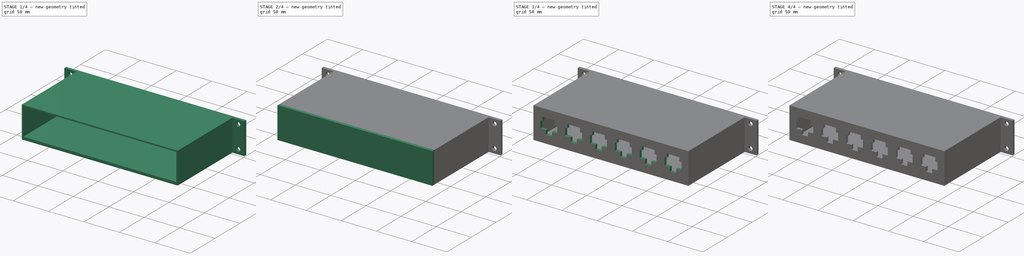
[diagram: build sequence overview — one tinted view per stage of 4, left to right]
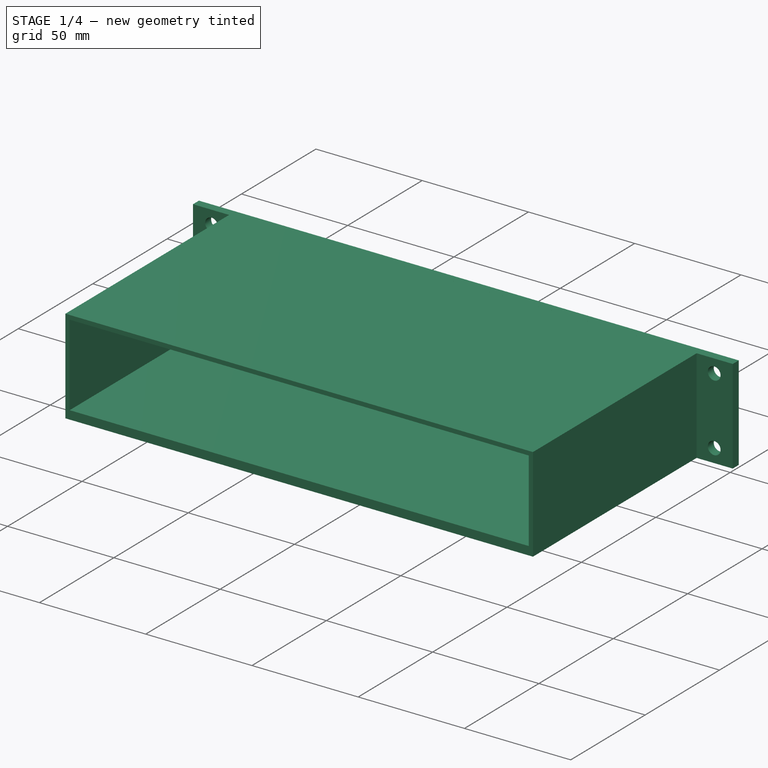
[diagram: stage 1 of 4 — iso view after this stage's code; geometry added in this stage tinted green]
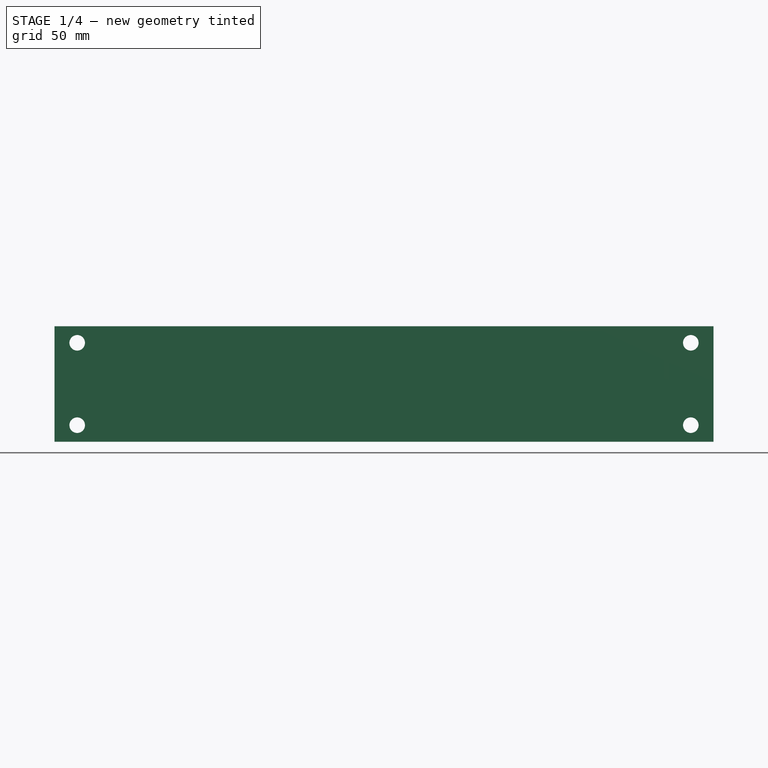
[diagram: stage 1 of 4 — front view after this stage's code; geometry added in this stage tinted green]
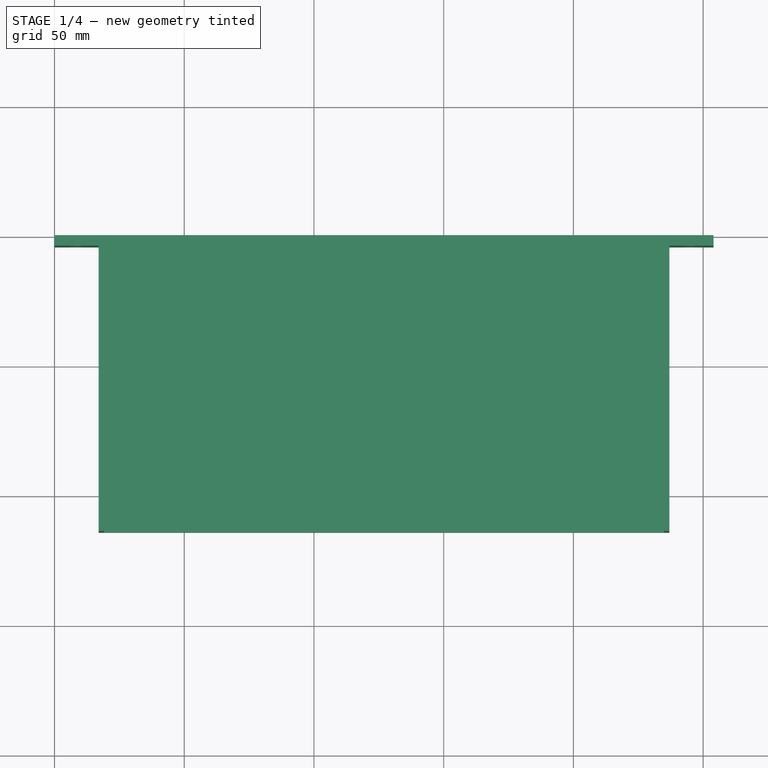
[diagram: stage 1 of 4 — top view after this stage's code; geometry added in this stage tinted green]
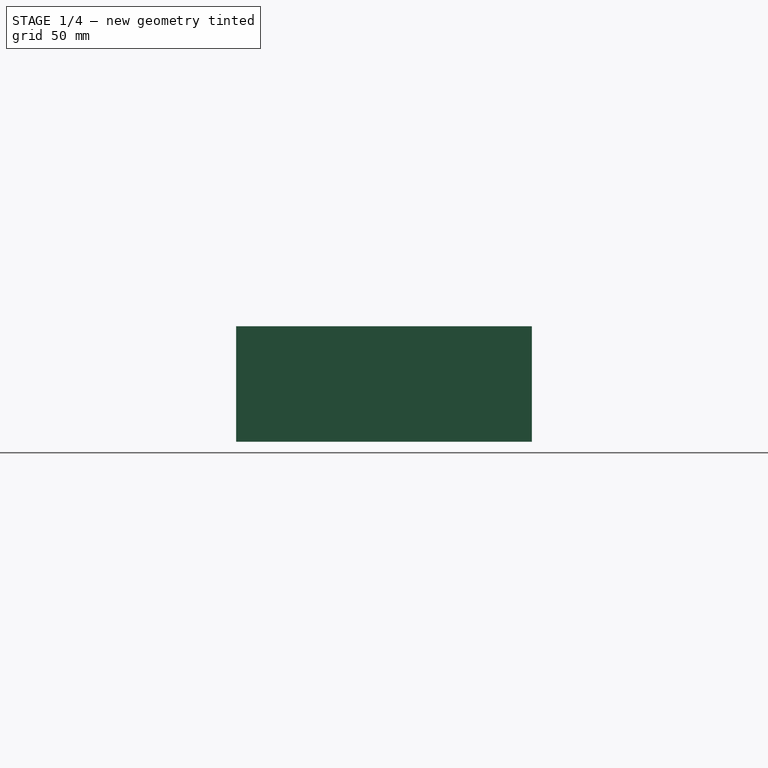
[diagram: stage 1 of 4 — right view after this stage's code; geometry added in this stage tinted green]
FCSTD DOCUMENT  (FreeCAD 1.0R39109 (Git))
Label: 10_rack_pdu
License: All rights reserved
LicenseURL: http://en.wikipedia.org/wiki/All_rights_reserved
objects: Sketcher::SketchObject×13, PartDesign::Pocket×7, PartDesign::Pad×6, App::DocumentObjectGroup×3, PartDesign::Body×2, PartDesign::CoordinateSystem×1, App::FeaturePython×1, App::Part×1
note: 68 computed .brp shape members not serialized (recipe doc carries the construction recipe); baked Part::Feature solids carry a one-line shape summary decoded from their .brp

FEATURE [Sketcher::SketchObject] Sketch
  ArcFitTolerance = 1e-06
  AttachmentSupport = -> [XZ_Plane]
  FullyConstrained = true
  MakeInternals = false
  MapMode = 5
  Placement = pos=(0,0,0) rot=(1,0,0;1.5708rad)
  sketch-geometry (18):
    g0: LineSegment StartX=0 StartY=44.5 StartZ=0 EndX=0 EndY=0 EndZ=0
    g1: LineSegment StartX=0 StartY=0 StartZ=0 EndX=254 EndY=0 EndZ=0
    g2: LineSegment StartX=254 StartY=0 StartZ=0 EndX=254 EndY=44.5 EndZ=0
    g3: LineSegment StartX=254 StartY=44.5 StartZ=0 EndX=0 EndY=44.5 EndZ=0
    g4: Circle CenterX=8.7375 CenterY=38.125 CenterZ=0 NormalX=0 NormalY=0 NormalZ=1 AngleXU=0 Radius=3
    g5: Circle CenterX=8.7375 CenterY=6.375 CenterZ=0 NormalX=0 NormalY=0 NormalZ=1 AngleXU=0 Radius=3
    g6: Circle CenterX=245.262 CenterY=38.125 CenterZ=0 NormalX=0 NormalY=0 NormalZ=1 AngleXU=0 Radius=3
    g7: Circle CenterX=245.262 CenterY=6.375 CenterZ=0 NormalX=0 NormalY=0 NormalZ=1 AngleXU=0 Radius=3
    g8: LineSegment [constr] StartX=8.7375 StartY=38.125 StartZ=0 EndX=245.262 EndY=38.125 EndZ=0
    g9: LineSegment [constr] StartX=245.262 StartY=38.125 StartZ=0 EndX=245.262 EndY=6.375 EndZ=0
    g10: LineSegment [constr] StartX=245.262 StartY=6.375 StartZ=0 EndX=8.7375 EndY=6.375 EndZ=0
    g11: LineSegment [constr] StartX=8.7375 StartY=6.375 StartZ=0 EndX=8.7375 EndY=38.125 EndZ=0
    g12: LineSegment [constr] StartX=8.7375 StartY=38.125 StartZ=0 EndX=245.262 EndY=6.375 EndZ=0
    g13: LineSegment [constr] StartX=245.262 StartY=38.125 StartZ=0 EndX=8.7375 EndY=6.375 EndZ=0
    g14: LineSegment [constr] StartX=0 StartY=44.5 StartZ=0 EndX=254 EndY=0 EndZ=0
    g15: LineSegment [constr] StartX=254 StartY=44.5 StartZ=0 EndX=0 EndY=0 EndZ=0
    g16: GeomPoint [constr] X=127 Y=22.25 Z=0
    g17: GeomPoint [constr] X=127 Y=22.25 Z=0
  constraints (40):
    c: Coincident(g0,g1)
    c: Coincident(g1,g2)
    c: Coincident(g2,g3)
    c: Vertical(g0)
    c: Vertical(g2)
    c: Horizontal(g1)
    c: Horizontal(g3)
    c: DistanceX(g3,g3) = 254  'External_width'
    c: DistanceY(g2,g2) = 44.5
    c: Equal(g4,g5)
    c: Equal(g5,g7)
    c: Equal(g7,g6)
    c: Diameter(g4) = 6
    c: Coincident(g8,g4)
    c: Coincident(g8,g6)
    c: Horizontal(g8)
    c: Coincident(g9,g6)
    c: Coincident(g9,g7)
    c: Coincident(g10,g7)
    c: Coincident(g10,g5)
    c: Coincident(g11,g5)
    c: Coincident(g11,g4)
    c: Equal(g8,g10)
    c: Equal(g11,g9)
    c: DistanceX(g8,g8) = 236.525
    c: Vertical(g11)
    c: DistanceY(g11,g11) = 31.75
    c: Coincident(g12,g4)
    c: Coincident(g12,g7)
    c: Coincident(g13,g6)
    c: Coincident(g13,g5)
    c: Coincident(g14,g1)
    c: Coincident(g15,g2)
    c: Coincident(g15,g0)
    c: Symmetric(g13,g13,g16)
    c: Symmetric(g14,g14,g17)
    c: Coincident(g16,g17)
    c: Coincident(g14,g3)
    c: Coincident(g0,g3)
    c: Coincident(g0,g-1)
FEATURE [PartDesign::Pad] Pad
  Direction = (0,-1,2e-16)
  Length = 4
  Length2 = 10
  Placement = pos=(0,0,0) rot=(1,0,0;1.5708rad)
  Profile = -> Sketch
  ReferenceAxis = -> Sketch [N_Axis]
  Suppressed = false
  Type = 0
FEATURE [PartDesign::CoordinateSystem] LCS_Origin
  AttacherType = Attacher::AttachEngine3D
  AttachmentSupport = -> [X_Axis002]
  MapMode = 2
FEATURE [App::DocumentObjectGroup] Constraints
FEATURE [App::FeaturePython] Variables  # WARN: FeaturePython — macro-defined, semantics opaque (R4)
  Type = App::PropertyContainer
FEATURE [App::DocumentObjectGroup] Configurations
FEATURE [App::Part] Assembly
  AssemblyType = Part::Link
  Group = -> [LCS_Origin,Constraints,Variables,Configurations]
  Origin = -> Origin002
  Type = Assembly
FEATURE [Sketcher::SketchObject] Sketch009
  ArcFitTolerance = 1e-06
  AttachmentOffset = pos=(0,0,4) rot=(0,0,1;0rad)
  AttachmentSupport = -> [XZ_Plane]
  ExternalGeometry = -> [Sketch]
  FullyConstrained = true
  MakeInternals = false
  MapMode = 5
  Placement = pos=(0,-4,9e-16) rot=(1,0,0;1.5708rad)
  expr: .AttachmentOffset.Base.z = Pad.Length
  sketch-geometry (5):
    g0: LineSegment StartX=17 StartY=0 StartZ=0 EndX=237 EndY=0 EndZ=0
    g1: LineSegment StartX=17 StartY=0 StartZ=0 EndX=17 EndY=4 EndZ=0
    g2: LineSegment StartX=17 StartY=4 StartZ=0 EndX=237 EndY=4 EndZ=0
    g3: LineSegment StartX=237 StartY=4 StartZ=0 EndX=237 EndY=0 EndZ=0
    g4: GeomPoint X=127 Y=0 Z=0
  constraints (12):
    c: PointOnObject(g0,g-3)
    c: Coincident(g1,g0)
    c: Vertical(g1)
    c: Coincident(g2,g1)
    c: Horizontal(g2)
    c: Coincident(g3,g2)
    c: Coincident(g3,g0)
    c: Vertical(g3)
    c: DistanceY(g1,g1) = 4
    c: DistanceX(g0,g0) = 220  'Internal_width'
    c: Symmetric(g0,g0,g4)
    c: Symmetric(g-1,g-3,g4)
FEATURE [PartDesign::Pad] Pad006
  BaseFeature = -> Pad
  Direction = (0,-1,2e-16)
  Length = 110
  Length2 = 10
  Placement = pos=(0,0,0) rot=(1,0,0;1.5708rad)
  Profile = -> Sketch009
  ReferenceAxis = -> Sketch009 [N_Axis]
  Suppressed = false
  Type = 0
FEATURE [PartDesign::Body] Body
  AllowCompound = false
  Group = -> [Sketch,Pad,Sketch009,Pad006,Sketch010,Pad007,Sketch011,Pad008,Sketch012,Pad009,Sketch013,Pocket,Sketch014,Pocket001,Sketch015,Pocket002,Sketch016,Pocket003,Sketch017,Pocket004,Sketch018,Pocket005,Sketch019,Pocket006]
  Origin = -> Origin
  Tip = -> Pocket006
FEATURE [Sketcher::SketchObject] Sketch020
  ArcFitTolerance = 1e-06
  AttachmentOffset = pos=(0,0,4) rot=(0,0,1;0rad)
  AttachmentSupport = -> [XZ_Plane003]
  FullyConstrained = true
  MakeInternals = false
  MapMode = 5
  Placement = pos=(0,-4,9e-16) rot=(1,0,0;1.5708rad)
  expr: .AttachmentOffset.Base.z = Pad.Length
  sketch-geometry (8):
    g0: LineSegment StartX=17 StartY=44.5 StartZ=0 EndX=17 EndY=4 EndZ=0
    g1: LineSegment StartX=17 StartY=4 StartZ=0 EndX=19 EndY=4 EndZ=0
    g2: LineSegment StartX=19 StartY=4 StartZ=0 EndX=19 EndY=42.5 EndZ=0
    g3: LineSegment StartX=19 StartY=42.5 StartZ=0 EndX=235 EndY=42.5 EndZ=0
    g4: LineSegment StartX=237 StartY=44.5 StartZ=0 EndX=17 EndY=44.5 EndZ=0
    g5: LineSegment StartX=235 StartY=42.5 StartZ=0 EndX=235 EndY=4 EndZ=0
    g6: LineSegment StartX=235 StartY=4 StartZ=0 EndX=237 EndY=4 EndZ=0
    g7: LineSegment StartX=237 StartY=4 StartZ=0 EndX=237 EndY=44.5 EndZ=0
  constraints (24):
    c: Coincident(g0,g1)
    c: Coincident(g1,g2)
    c: Vertical(g0)
    c: Vertical(g2)
    c: Horizontal(g1)
    c: Horizontal(g3)
    c: Horizontal(g4)
    c: Coincident(g5,g6)
    c: Coincident(g6,g7)
    c: Horizontal(g6)
    c: Vertical(g5)
    c: Vertical(g7)
    c: Coincident(g3,g5)
    c: Coincident(g2,g3)
    c: Coincident(g0,g4)
    c: Coincident(g4,g7)
    c: DistanceX(g0,g1) = 2
    c: DistanceX(g6,g6) = 2
    c: DistanceY(g3,g4) = 2
    c: Distance(g0,g-1) = 4
    c: DistanceX(g-1,g0) = 17
    c: DistanceY(g0,g0) = 40.5
    c: DistanceX(g4,g4) = 220
    c: Equal(g2,g5)
FEATURE [PartDesign::Pad] Pad010
  Direction = (0,-1,2e-16)
  Length = 110
  Length2 = 10
  Placement = pos=(0,0,0) rot=(1,0,0;1.5708rad)
  Profile = -> Sketch020
  ReferenceAxis = -> Sketch020 [N_Axis]
  Suppressed = false
  Type = 0
FEATURE [PartDesign::Body] Body001
  AllowCompound = false
  Group = -> [Sketch020,Pad010]
  Origin = -> Origin003
  Tip = -> Pad010
FEATURE [App::DocumentObjectGroup] Parts
  Group = -> [Body,Body001]
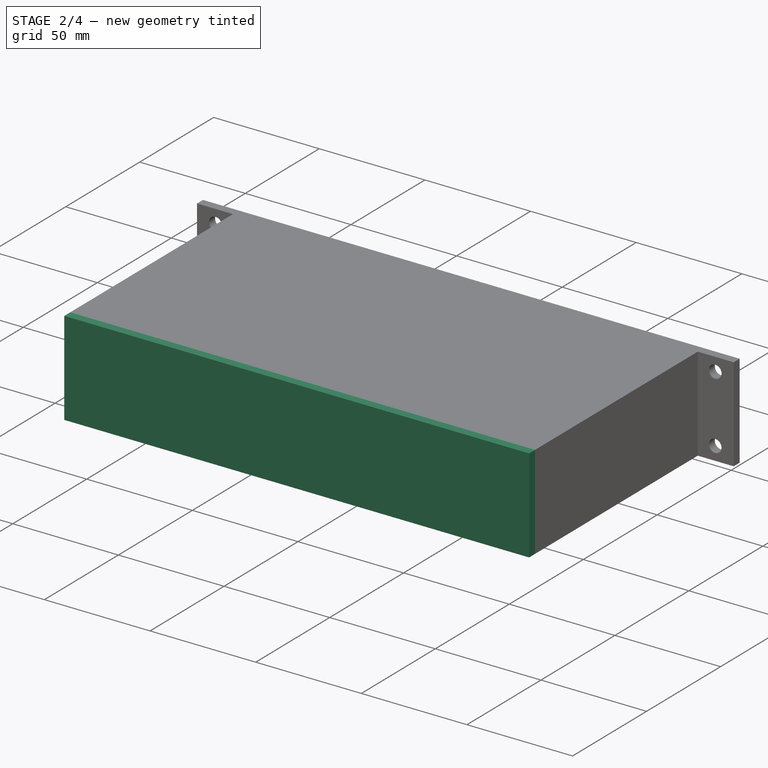
[diagram: stage 2 of 4 — iso view after this stage's code; geometry added in this stage tinted green]
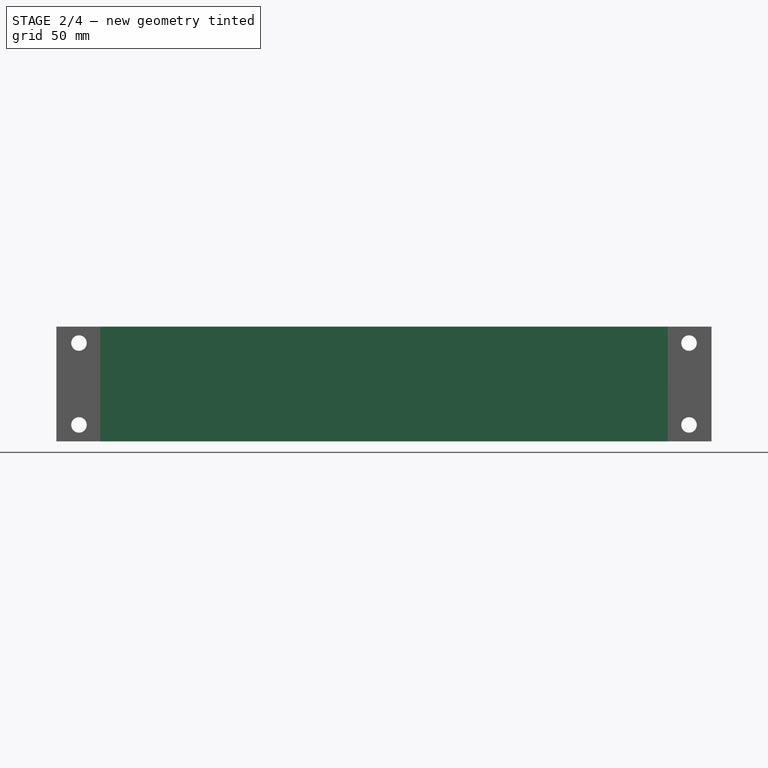
[diagram: stage 2 of 4 — front view after this stage's code; geometry added in this stage tinted green]
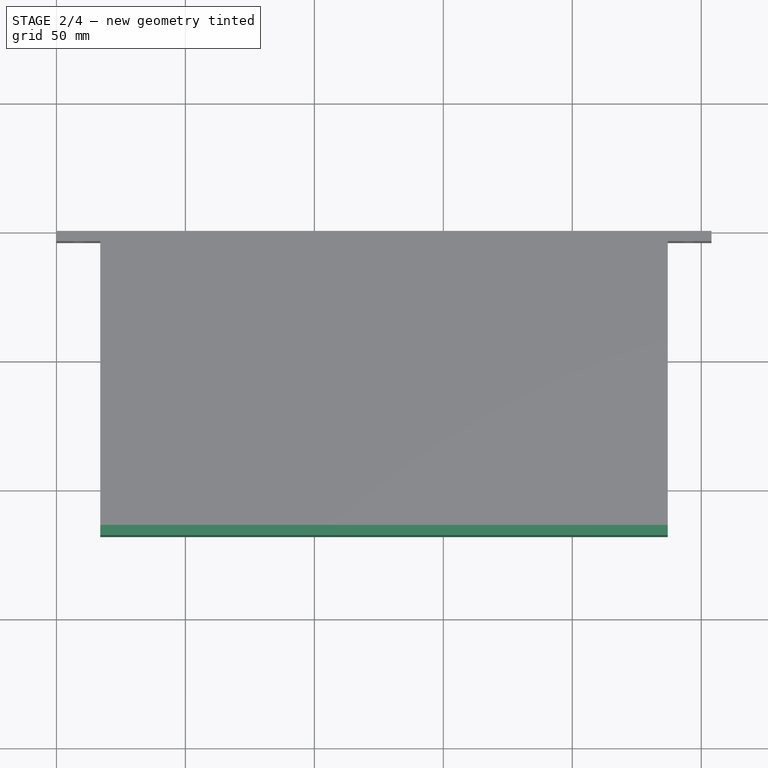
[diagram: stage 2 of 4 — top view after this stage's code; geometry added in this stage tinted green]
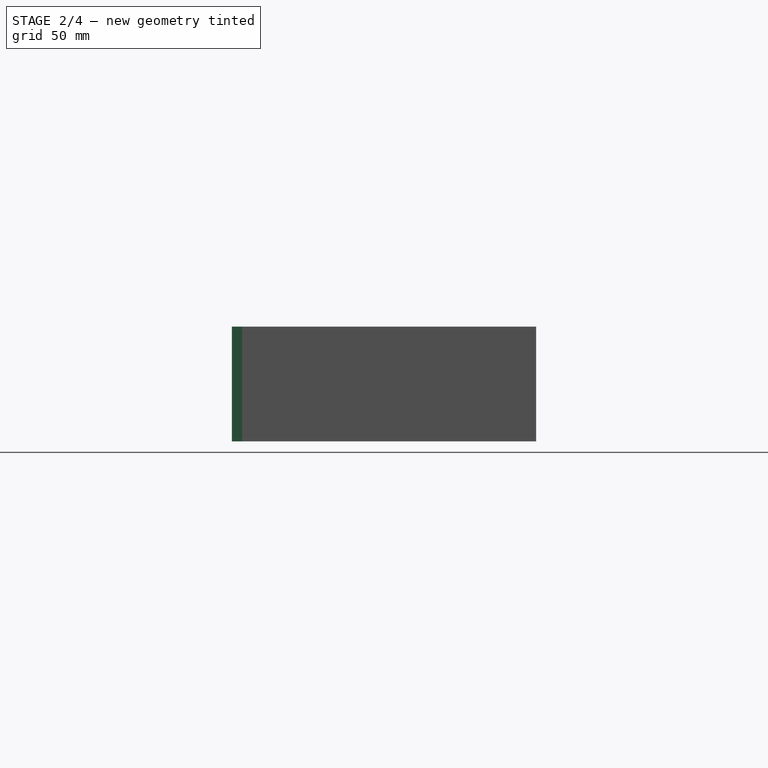
[diagram: stage 2 of 4 — right view after this stage's code; geometry added in this stage tinted green]
FEATURE [Sketcher::SketchObject] Sketch010
  ArcFitTolerance = 1e-06
  AttachmentOffset = pos=(0,0,114) rot=(0,0,1;0rad)
  AttachmentSupport = -> [XZ_Plane]
  ExternalGeometry = -> [Sketch]
  FullyConstrained = true
  MakeInternals = false
  MapMode = 5
  Placement = pos=(0,-114,2.53e-14) rot=(1,0,0;1.5708rad)
  expr: .AttachmentOffset.Base.z = Pad.Length + Pad006.Length
  sketch-geometry (5):
    g0: LineSegment StartX=17 StartY=44.5 StartZ=0 EndX=17 EndY=0 EndZ=0
    g1: LineSegment StartX=17 StartY=0 StartZ=0 EndX=237 EndY=0 EndZ=0
    g2: LineSegment StartX=237 StartY=0 StartZ=0 EndX=237 EndY=44.5 EndZ=0
    g3: LineSegment StartX=237 StartY=44.5 StartZ=0 EndX=17 EndY=44.5 EndZ=0
    g4: GeomPoint X=127 Y=0 Z=0
  constraints (12):
    c: Coincident(g0,g1)
    c: Coincident(g1,g2)
    c: Coincident(g2,g3)
    c: Coincident(g3,g0)
    c: Vertical(g0)
    c: Vertical(g2)
    c: Horizontal(g1)
    c: Horizontal(g3)
    c: PointOnObject(g0,g-4)
    c: DistanceX(g1,g1) = 220
    c: Symmetric(g1,g1,g4)
    c: Symmetric(g-1,g-3,g4)
FEATURE [PartDesign::Pad] Pad007
  BaseFeature = -> Pad006
  Direction = (0,-1,2e-16)
  Length = 4
  Length2 = 10
  Placement = pos=(0,0,0) rot=(1,0,0;1.5708rad)
  Profile = -> Sketch010
  ReferenceAxis = -> Sketch010 [N_Axis]
  Suppressed = false
  Type = 0
FEATURE [Sketcher::SketchObject] Sketch011
  ArcFitTolerance = 1e-06
  AttachmentOffset = pos=(0,0,19) rot=(0,0,1;0rad)
  AttachmentSupport = -> [YZ_Plane]
  ExternalGeometry = -> [Sketch010,Sketch009,Sketch]
  FullyConstrained = true
  MakeInternals = false
  MapMode = 5
  Placement = pos=(19,0,0) rot=(0.57735,0.57735,0.57735;2.0944rad)
  expr: .AttachmentOffset.Base.z = (Sketch.Constraints.External_width - Sketch009.Constraints.Internal_width) / 2 + 2 mm
  sketch-geometry (8):
    g0: LineSegment [constr] StartX=-4 StartY=4 StartZ=0 EndX=-114 EndY=4 EndZ=0
    g1: LineSegment StartX=-114 StartY=44.5 StartZ=0 EndX=-114 EndY=4 EndZ=0
    g2: LineSegment StartX=-4 StartY=44.5 StartZ=0 EndX=-4 EndY=4 EndZ=0
    g3: LineSegment [constr] StartX=-114 StartY=44.5 StartZ=0 EndX=-4 EndY=44.5 EndZ=0
    g4: LineSegment StartX=-114 StartY=4 StartZ=0 EndX=-4 EndY=4 EndZ=0
    g5: LineSegment StartX=-114 StartY=44.5 StartZ=0 EndX=-83.5 EndY=14 EndZ=0
    g6: LineSegment StartX=-83.5 StartY=14 StartZ=0 EndX=-34.5 EndY=14 EndZ=0
    g7: LineSegment StartX=-34.5 StartY=14 StartZ=0 EndX=-4 EndY=44.5 EndZ=0
  constraints (20):
    c: Horizontal(g0)
    c: PointOnObject(g0,g-3)
    c: Coincident(g1,g-3)
    c: Coincident(g1,g0)
    c: Coincident(g-4,g0)
    c: Vertical(g2)
    c: Coincident(g3,g1)
    c: Horizontal(g3)
    c: Coincident(g2,g3)
    c: Coincident(g4,g0)
    c: Coincident(g4,g2)
    c: Coincident(g5,g1)
    c: Coincident(g6,g5)
    c: Horizontal(g6)
    c: Coincident(g7,g6)
    c: Coincident(g7,g2)
    c: Equal(g7,g5)
    c: Distance(g4,g6) = 10
    c: Angle(g7,g2) = 0.785398
    c: Coincident(g2,g0)
FEATURE [PartDesign::Pad] Pad008
  BaseFeature = -> Pad007
  Direction = (1,0,0)
  Length = 4
  Length2 = 10
  Placement = pos=(0,0,0) rot=(1,0,0;1.5708rad)
  Profile = -> Sketch011
  ReferenceAxis = -> Sketch011 [N_Axis]
  Suppressed = false
  Type = 0
FEATURE [Sketcher::SketchObject] Sketch012
  ArcFitTolerance = 1e-06
  AttachmentOffset = pos=(0,0,235) rot=(0,0,1;0rad)
  AttachmentSupport = -> [YZ_Plane]
  ExternalGeometry = -> [Sketch011]
  FullyConstrained = true
  MakeInternals = false
  MapMode = 5
  Placement = pos=(235,0,0) rot=(0.57735,0.57735,0.57735;2.0944rad)
  expr: .AttachmentOffset.Base.z = (Sketch.Constraints.External_width - Sketch009.Constraints.Internal_width) / 2 + Sketch009.Constraints.Internal_width - 2 mm
  sketch-geometry (6):
    g0: LineSegment StartX=-114 StartY=44.5 StartZ=0 EndX=-83.5 EndY=14 EndZ=0
    g1: LineSegment StartX=-34.5 StartY=14 StartZ=0 EndX=-83.5 EndY=14 EndZ=0
    g2: LineSegment StartX=-34.5 StartY=14 StartZ=0 EndX=-4 EndY=44.5 EndZ=0
    g3: LineSegment StartX=-4 StartY=44.5 StartZ=0 EndX=-4 EndY=4 EndZ=0
    g4: LineSegment StartX=-4 StartY=4 StartZ=0 EndX=-114 EndY=4 EndZ=0
    g5: LineSegment StartX=-114 StartY=4 StartZ=0 EndX=-114 EndY=44.5 EndZ=0
  constraints (12):
    c: Coincident(g0,g-4)
    c: Coincident(g0,g-5)
    c: Coincident(g1,g-7)
    c: Coincident(g1,g0)
    c: Coincident(g2,g1)
    c: Coincident(g2,g-8)
    c: Coincident(g3,g2)
    c: Coincident(g3,g-8)
    c: Coincident(g4,g3)
    c: Coincident(g4,g-6)
    c: Coincident(g5,g4)
    c: Coincident(g5,g0)
FEATURE [PartDesign::Pad] Pad009
  BaseFeature = -> Pad008
  Direction = (1,0,0)
  Length = 4
  Length2 = 10
  Placement = pos=(0,0,0) rot=(1,0,0;1.5708rad)
  Profile = -> Sketch012
  ReferenceAxis = -> Sketch012 [N_Axis]
  Reversed = true
  Suppressed = false
  Type = 0
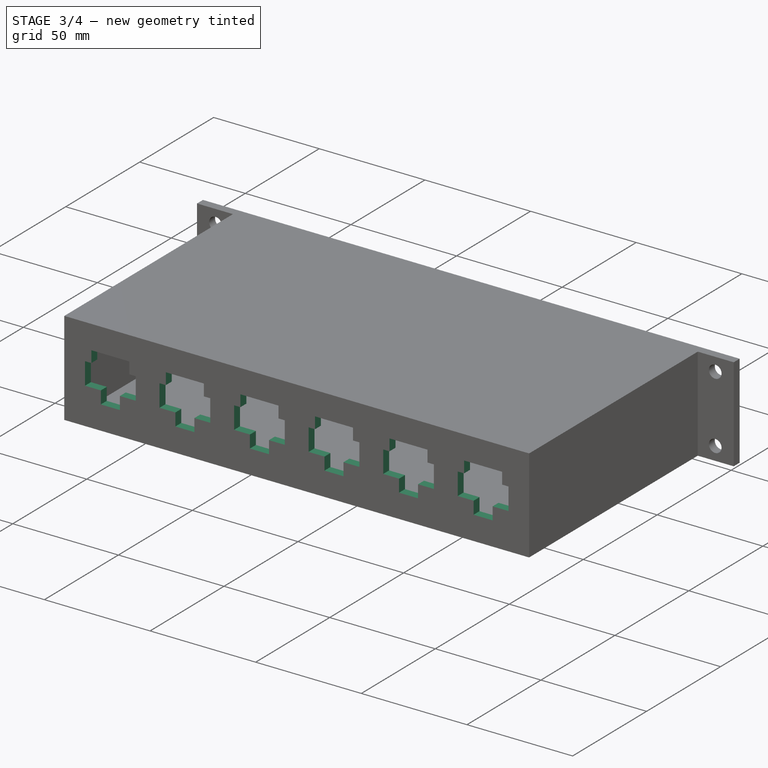
[diagram: stage 3 of 4 — iso view after this stage's code; geometry added in this stage tinted green]
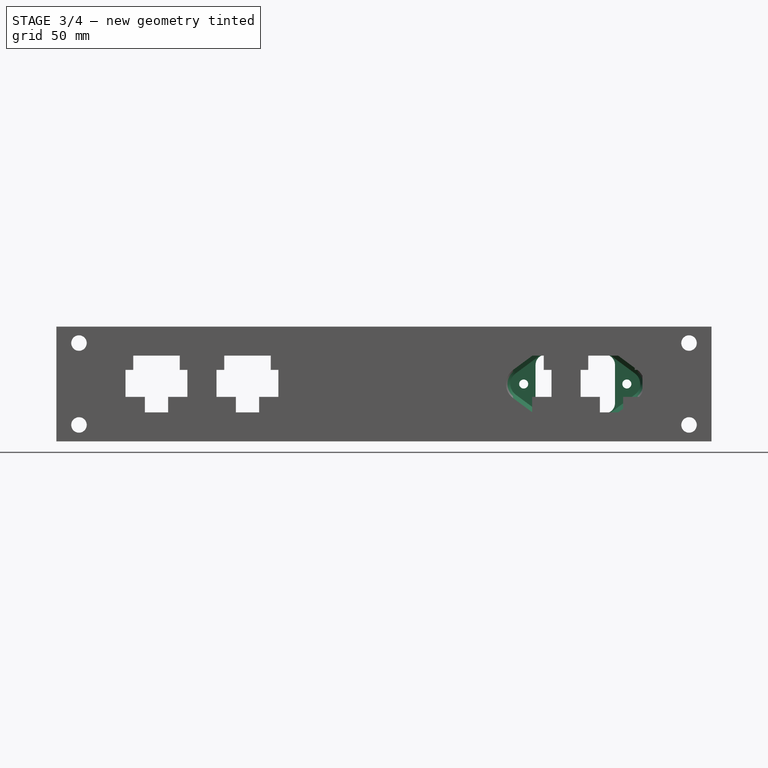
[diagram: stage 3 of 4 — front view after this stage's code; geometry added in this stage tinted green]
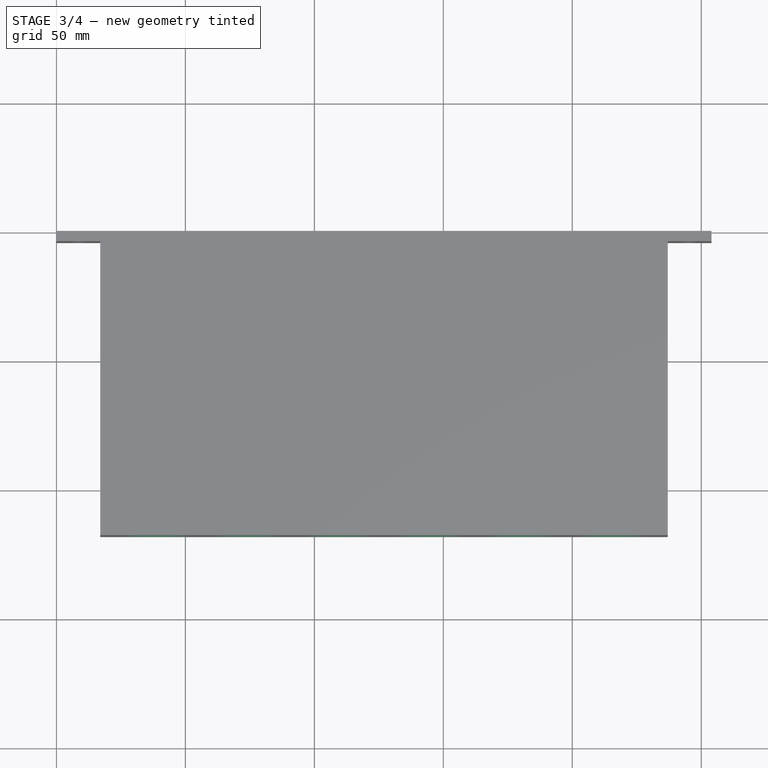
[diagram: stage 3 of 4 — top view after this stage's code; geometry added in this stage tinted green]
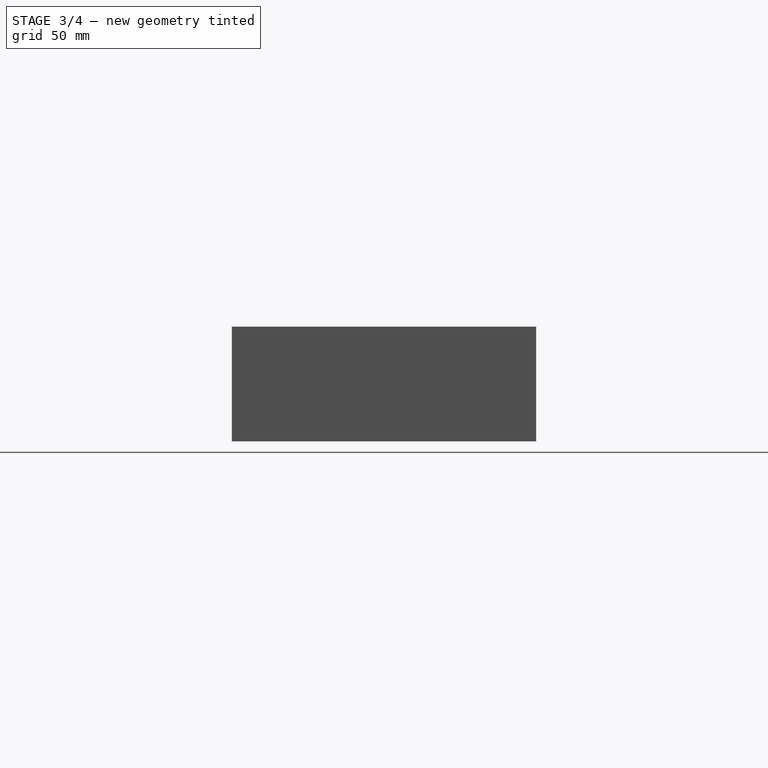
[diagram: stage 3 of 4 — right view after this stage's code; geometry added in this stage tinted green]
FEATURE [Sketcher::SketchObject] Sketch013
  ArcFitTolerance = 1e-06
  AttachmentOffset = pos=(0,0,118) rot=(0,0,1;0rad)
  AttachmentSupport = -> [XZ_Plane]
  ExternalGeometry = -> [Sketch010]
  FullyConstrained = true
  MakeInternals = false
  MapMode = 5
  Placement = pos=(0,-118,2.62e-14) rot=(1,0,0;1.5708rad)
  expr: .AttachmentOffset.Base.z = Pad.Length + Pad006.Length + Pad007.Length
  sketch-geometry (130):
    g0: LineSegment [constr] StartX=17 StartY=8.75 StartZ=0 EndX=17 EndY=0 EndZ=0
    g1: LineSegment [constr] StartX=17 StartY=35.75 StartZ=0 EndX=17 EndY=44.5 EndZ=0
    g2: LineSegment [constr] StartX=25.2857 StartY=35.75 StartZ=0 EndX=25.2857 EndY=8.75 EndZ=0
    g3: LineSegment [constr] StartX=25.2857 StartY=8.75 StartZ=0 EndX=52.2857 EndY=8.75 EndZ=0
    g4: LineSegment [constr] StartX=52.2857 StartY=8.75 StartZ=0 EndX=52.2857 EndY=35.75 EndZ=0
    g5: LineSegment [constr] StartX=52.2857 StartY=35.75 StartZ=0 EndX=25.2857 EndY=35.75 EndZ=0
    g6: LineSegment StartX=29.7857 StartY=33.25 StartZ=0 EndX=47.7857 EndY=33.25 EndZ=0
    g7: LineSegment StartX=47.7857 StartY=33.25 StartZ=0 EndX=47.7857 EndY=27.75 EndZ=0
    g8: LineSegment StartX=47.7857 StartY=27.75 StartZ=0 EndX=50.7857 EndY=27.75 EndZ=0
    g9: LineSegment StartX=50.7857 StartY=27.75 StartZ=0 EndX=50.7857 EndY=17.25 EndZ=0
    g10: LineSegment StartX=50.7857 StartY=17.25 StartZ=0 EndX=43.2857 EndY=17.25 EndZ=0
    g11: LineSegment StartX=43.2857 StartY=17.25 StartZ=0 EndX=43.2857 EndY=11.25 EndZ=0
    g12: LineSegment StartX=43.2857 StartY=11.25 StartZ=0 EndX=34.2857 EndY=11.25 EndZ=0
    g13: LineSegment StartX=34.2857 StartY=11.25 StartZ=0 EndX=34.2857 EndY=17.25 EndZ=0
    g14: LineSegment StartX=34.2857 StartY=17.25 StartZ=0 EndX=26.7857 EndY=17.25 EndZ=0
    g15: LineSegment StartX=26.7857 StartY=17.25 StartZ=0 EndX=26.7857 EndY=27.75 EndZ=0
    g16: LineSegment StartX=26.7857 StartY=27.75 StartZ=0 EndX=29.7857 EndY=27.75 EndZ=0
    g17: LineSegment StartX=29.7857 StartY=27.75 StartZ=0 EndX=29.7857 EndY=33.25 EndZ=0
    g18: LineSegment [constr] StartX=26.7857 StartY=27.75 StartZ=0 EndX=25.2857 EndY=27.75 EndZ=0
    g19: LineSegment [constr] StartX=50.7857 StartY=27.75 StartZ=0 EndX=52.2857 EndY=27.75 EndZ=0
    g20: LineSegment [constr] StartX=47.7857 StartY=33.25 StartZ=0 EndX=47.7857 EndY=35.75 EndZ=0
    g21: LineSegment [constr] StartX=43.2857 StartY=11.25 StartZ=0 EndX=43.2857 EndY=8.75 EndZ=0
    g22: LineSegment [constr] StartX=25.2857 StartY=35.75 StartZ=0 EndX=17 EndY=35.75 EndZ=0
    g23: LineSegment [constr] StartX=25.2857 StartY=8.75 StartZ=0 EndX=17 EndY=8.75 EndZ=0
    g24: LineSegment [constr] StartX=201.714 StartY=35.75 StartZ=0 EndX=201.714 EndY=8.75 EndZ=0
    g25: LineSegment [constr] StartX=201.714 StartY=8.75 StartZ=0 EndX=228.714 EndY=8.75 EndZ=0
    g26: LineSegment [constr] StartX=228.714 StartY=8.75 StartZ=0 EndX=228.714 EndY=35.75 EndZ=0
    g27: LineSegment [constr] StartX=228.714 StartY=35.75 StartZ=0 EndX=201.714 EndY=35.75 EndZ=0
    g28: LineSegment StartX=206.214 StartY=33.25 StartZ=0 EndX=224.214 EndY=33.25 EndZ=0
    g29: LineSegment StartX=224.214 StartY=33.25 StartZ=0 EndX=224.214 EndY=27.75 EndZ=0
    g30: LineSegment StartX=224.214 StartY=27.75 StartZ=0 EndX=227.214 EndY=27.75 EndZ=0
    g31: LineSegment StartX=227.214 StartY=27.75 StartZ=0 EndX=227.214 EndY=17.25 EndZ=0
    g32: LineSegment StartX=227.214 StartY=17.25 StartZ=0 EndX=219.714 EndY=17.25 EndZ=0
    g33: LineSegment StartX=219.714 StartY=17.25 StartZ=0 EndX=219.714 EndY=11.25 EndZ=0
    g34: LineSegment StartX=219.714 StartY=11.25 StartZ=0 EndX=210.714 EndY=11.25 EndZ=0
    g35: LineSegment StartX=210.714 StartY=11.25 StartZ=0 EndX=210.714 EndY=17.25 EndZ=0
    g36: LineSegment StartX=210.714 StartY=17.25 StartZ=0 EndX=203.214 EndY=17.25 EndZ=0
    g37: LineSegment StartX=203.214 StartY=17.25 StartZ=0 EndX=203.214 EndY=27.75 EndZ=0
    g38: LineSegment StartX=203.214 StartY=27.75 StartZ=0 EndX=206.214 EndY=27.75 EndZ=0
    g39: LineSegment StartX=206.214 StartY=27.75 StartZ=0 EndX=206.214 EndY=33.25 EndZ=0
    g40: LineSegment [constr] StartX=203.214 StartY=27.75 StartZ=0 EndX=201.714 EndY=27.75 EndZ=0
    g41: LineSegment [constr] StartX=227.214 StartY=27.75 StartZ=0 EndX=228.714 EndY=27.75 EndZ=0
    g42: LineSegment [constr] StartX=224.214 StartY=33.25 StartZ=0 EndX=224.214 EndY=35.75 EndZ=0
    g43: LineSegment [constr] StartX=219.714 StartY=11.25 StartZ=0 EndX=219.714 EndY=8.75 EndZ=0
    g44: LineSegment [constr] StartX=166.429 StartY=35.75 StartZ=0 EndX=166.429 EndY=8.75 EndZ=0
    g45: LineSegment [constr] StartX=166.429 StartY=8.75 StartZ=0 EndX=193.429 EndY=8.75 EndZ=0
    g46: LineSegment [constr] StartX=193.429 StartY=8.75 StartZ=0 EndX=193.429 EndY=35.75 EndZ=0
    g47: LineSegment [constr] StartX=193.429 StartY=35.75 StartZ=0 EndX=166.429 EndY=35.75 EndZ=0
    g48: LineSegment StartX=170.929 StartY=33.25 StartZ=0 EndX=188.929 EndY=33.25 EndZ=0
    g49: LineSegment StartX=188.929 StartY=33.25 StartZ=0 EndX=188.929 EndY=27.75 EndZ=0
    g50: LineSegment StartX=188.929 StartY=27.75 StartZ=0 EndX=191.929 EndY=27.75 EndZ=0
    g51: LineSegment StartX=191.929 StartY=27.75 StartZ=0 EndX=191.929 EndY=17.25 EndZ=0
    g52: LineSegment StartX=191.929 StartY=17.25 StartZ=0 EndX=184.429 EndY=17.25 EndZ=0
    g53: LineSegment StartX=184.429 StartY=17.25 StartZ=0 EndX=184.429 EndY=11.25 EndZ=0
    g54: LineSegment StartX=184.429 StartY=11.25 StartZ=0 EndX=175.429 EndY=11.25 EndZ=0
    g55: LineSegment StartX=175.429 StartY=11.25 StartZ=0 EndX=175.429 EndY=17.25 EndZ=0
    g56: LineSegment StartX=175.429 StartY=17.25 StartZ=0 EndX=167.929 EndY=17.25 EndZ=0
    g57: LineSegment StartX=167.929 StartY=17.25 StartZ=0 EndX=167.929 EndY=27.75 EndZ=0
    g58: LineSegment StartX=167.929 StartY=27.75 StartZ=0 EndX=170.929 EndY=27.75 EndZ=0
    g59: LineSegment StartX=170.929 StartY=27.75 StartZ=0 EndX=170.929 EndY=33.25 EndZ=0
    g60: LineSegment [constr] StartX=167.929 StartY=27.75 StartZ=0 EndX=166.429 EndY=27.75 EndZ=0
    g61: LineSegment [constr] StartX=191.929 StartY=27.75 StartZ=0 EndX=193.429 EndY=27.75 EndZ=0
    g62: LineSegment [constr] StartX=188.929 StartY=33.25 StartZ=0 EndX=188.929 EndY=35.75 EndZ=0
    g63: LineSegment [constr] StartX=184.429 StartY=11.25 StartZ=0 EndX=184.429 EndY=8.75 EndZ=0
    g64: LineSegment [constr] StartX=131.143 StartY=35.75 StartZ=0 EndX=131.143 EndY=8.75 EndZ=0
    g65: LineSegment [constr] StartX=131.143 StartY=8.75 StartZ=0 EndX=158.143 EndY=8.75 EndZ=0
    g66: LineSegment [constr] StartX=158.143 StartY=8.75 StartZ=0 EndX=158.143 EndY=35.75 EndZ=0
    g67: LineSegment [constr] StartX=158.143 StartY=35.75 StartZ=0 EndX=131.143 EndY=35.75 EndZ=0
    g68: LineSegment StartX=135.643 StartY=33.25 StartZ=0 EndX=153.643 EndY=33.25 EndZ=0
    g69: LineSegment StartX=153.643 StartY=33.25 StartZ=0 EndX=153.643 EndY=27.75 EndZ=0
    g70: LineSegment StartX=153.643 StartY=27.75 StartZ=0 EndX=156.643 EndY=27.75 EndZ=0
    g71: LineSegment StartX=156.643 StartY=27.75 StartZ=0 EndX=156.643 EndY=17.25 EndZ=0
    g72: LineSegment StartX=156.643 StartY=17.25 StartZ=0 EndX=149.143 EndY=17.25 EndZ=0
    g73: LineSegment StartX=149.143 StartY=17.25 StartZ=0 EndX=149.143 EndY=11.25 EndZ=0
    g74: LineSegment StartX=149.143 StartY=11.25 StartZ=0 EndX=140.143 EndY=11.25 EndZ=0
    g75: LineSegment StartX=140.143 StartY=11.25 StartZ=0 EndX=140.143 EndY=17.25 EndZ=0
    g76: LineSegment StartX=140.143 StartY=17.25 StartZ=0 EndX=132.643 EndY=17.25 EndZ=0
    g77: LineSegment StartX=132.643 StartY=17.25 StartZ=0 EndX=132.643 EndY=27.75 EndZ=0
    g78: LineSegment StartX=132.643 StartY=27.75 StartZ=0 EndX=135.643 EndY=27.75 EndZ=0
    g79: LineSegment StartX=135.643 StartY=27.75 StartZ=0 EndX=135.643 EndY=33.25 EndZ=0
    g80: LineSegment [constr] StartX=132.643 StartY=27.75 StartZ=0 EndX=131.143 EndY=27.75 EndZ=0
    g81: LineSegment [constr] StartX=156.643 StartY=27.75 StartZ=0 EndX=158.143 EndY=27.75 EndZ=0
    g82: LineSegment [constr] StartX=153.643 StartY=33.25 StartZ=0 EndX=153.643 EndY=35.75 EndZ=0
    g83: LineSegment [constr] StartX=149.143 StartY=11.25 StartZ=0 EndX=149.143 EndY=8.75 EndZ=0
    g84: LineSegment [constr] StartX=95.8571 StartY=35.75 StartZ=0 EndX=95.8571 EndY=8.75 EndZ=0
    g85: LineSegment [constr] StartX=95.8571 StartY=8.75 StartZ=0 EndX=122.857 EndY=8.75 EndZ=0
    g86: LineSegment [constr] StartX=122.857 StartY=8.75 StartZ=0 EndX=122.857 EndY=35.75 EndZ=0
    g87: LineSegment [constr] StartX=122.857 StartY=35.75 StartZ=0 EndX=95.8571 EndY=35.75 EndZ=0
    g88: LineSegment StartX=100.357 StartY=33.25 StartZ=0 EndX=118.357 EndY=33.25 EndZ=0
    g89: LineSegment StartX=118.357 StartY=33.25 StartZ=0 EndX=118.357 EndY=27.75 EndZ=0
    g90: LineSegment StartX=118.357 StartY=27.75 StartZ=0 EndX=121.357 EndY=27.75 EndZ=0
    g91: LineSegment StartX=121.357 StartY=27.75 StartZ=0 EndX=121.357 EndY=17.25 EndZ=0
    g92: LineSegment StartX=121.357 StartY=17.25 StartZ=0 EndX=113.857 EndY=17.25 EndZ=0
    g93: LineSegment StartX=113.857 StartY=17.25 StartZ=0 EndX=113.857 EndY=11.25 EndZ=0
    g94: LineSegment StartX=113.857 StartY=11.25 StartZ=0 EndX=104.857 EndY=11.25 EndZ=0
    g95: LineSegment StartX=104.857 StartY=11.25 StartZ=0 EndX=104.857 EndY=17.25 EndZ=0
    g96: LineSegment StartX=104.857 StartY=17.25 StartZ=0 EndX=97.3571 EndY=17.25 EndZ=0
    g97: LineSegment StartX=97.3571 StartY=17.25 StartZ=0 EndX=97.3571 EndY=27.75 EndZ=0
    g98: LineSegment StartX=97.3571 StartY=27.75 StartZ=0 EndX=100.357 EndY=27.75 EndZ=0
    g99: LineSegment StartX=100.357 StartY=27.75 StartZ=0 EndX=100.357 EndY=33.25 EndZ=0
    g100: LineSegment [constr] StartX=97.3571 StartY=27.75 StartZ=0 EndX=95.8571 EndY=27.75 EndZ=0
    g101: LineSegment [constr] StartX=121.357 StartY=27.75 StartZ=0 EndX=122.857 EndY=27.75 EndZ=0
    g102: LineSegment [constr] StartX=118.357 StartY=33.25 StartZ=0 EndX=118.357 EndY=35.75 EndZ=0
    g103: LineSegment [constr] StartX=113.857 StartY=11.25 StartZ=0 EndX=113.857 EndY=8.75 EndZ=0
    g104: LineSegment [constr] StartX=60.5714 StartY=35.75 StartZ=0 EndX=60.5714 EndY=8.75 EndZ=0
    g105: LineSegment [constr] StartX=60.5714 StartY=8.75 StartZ=0 EndX=87.5714 EndY=8.75 EndZ=0
    g106: LineSegment [constr] StartX=87.5714 StartY=8.75 StartZ=0 EndX=87.5714 EndY=35.75 EndZ=0
    g107: LineSegment [constr] StartX=87.5714 StartY=35.75 StartZ=0 EndX=60.5714 EndY=35.75 EndZ=0
    g108: LineSegment StartX=65.0714 StartY=33.25 StartZ=0 EndX=83.0714 EndY=33.25 EndZ=0
    g109: LineSegment StartX=83.0714 StartY=33.25 StartZ=0 EndX=83.0714 EndY=27.75 EndZ=0
    g110: LineSegment StartX=83.0714 StartY=27.75 StartZ=0 EndX=86.0714 EndY=27.75 EndZ=0
    g111: LineSegment StartX=86.0714 StartY=27.75 StartZ=0 EndX=86.0714 EndY=17.25 EndZ=0
    g112: LineSegment StartX=86.0714 StartY=17.25 StartZ=0 EndX=78.5714 EndY=17.25 EndZ=0
    g113: LineSegment StartX=78.5714 StartY=17.25 StartZ=0 EndX=78.5714 EndY=11.25 EndZ=0
    g114: LineSegment StartX=78.5714 StartY=11.25 StartZ=0 EndX=69.5714 EndY=11.25 EndZ=0
    g115: LineSegment StartX=69.5714 StartY=11.25 StartZ=0 EndX=69.5714 EndY=17.25 EndZ=0
    g116: LineSegment StartX=69.5714 StartY=17.25 StartZ=0 EndX=62.0714 EndY=17.25 EndZ=0
    g117: LineSegment StartX=62.0714 StartY=17.25 StartZ=0 EndX=62.0714 EndY=27.75 EndZ=0
    g118: LineSegment StartX=62.0714 StartY=27.75 StartZ=0 EndX=65.0714 EndY=27.75 EndZ=0
    g119: LineSegment StartX=65.0714 StartY=27.75 StartZ=0 EndX=65.0714 EndY=33.25 EndZ=0
    g120: LineSegment [constr] StartX=62.0714 StartY=27.75 StartZ=0 EndX=60.5714 EndY=27.75 EndZ=0
    g121: LineSegment [constr] StartX=86.0714 StartY=27.75 StartZ=0 EndX=87.5714 EndY=27.75 EndZ=0
    g122: LineSegment [constr] StartX=83.0714 StartY=33.25 StartZ=0 EndX=83.0714 EndY=35.75 EndZ=0
    g123: LineSegment [constr] StartX=78.5714 StartY=11.25 StartZ=0 EndX=78.5714 EndY=8.75 EndZ=0
    g124: LineSegment [constr] StartX=52.2857 StartY=35.75 StartZ=0 EndX=60.5714 EndY=35.75 EndZ=0
    g125: LineSegment [constr] StartX=87.5714 StartY=35.75 StartZ=0 EndX=95.8571 EndY=35.75 EndZ=0
    g126: LineSegment [constr] StartX=122.857 StartY=35.75 StartZ=0 EndX=131.143 EndY=35.75 EndZ=0
    g127: LineSegment [constr] StartX=158.143 StartY=35.75 StartZ=0 EndX=166.429 EndY=35.75 EndZ=0
    g128: LineSegment [constr] StartX=193.429 StartY=35.75 StartZ=0 EndX=201.714 EndY=35.75 EndZ=0
    g129: LineSegment [constr] StartX=228.714 StartY=35.75 StartZ=0 EndX=237 EndY=35.75 EndZ=0
  constraints (383):
    c: PointOnObject(g1,g-3)
    c: PointOnObject(g0,g-3)
    c: Coincident(g0,g-3)
    c: Coincident(g1,g-3)
    c: Equal(g1,g0)
    c: Coincident(g2,g3)
    c: Coincident(g3,g4)
    c: Coincident(g4,g5)
    c: Coincident(g5,g2)
    c: Vertical(g2)
    c: Vertical(g4)
    c: Horizontal(g3)
    c: Horizontal(g5)
    c: DistanceX(g5,g5) = 27
    c: Equal(g4,g5)
    c: Horizontal(g6)
    c: Coincident(g7,g6)
    c: Vertical(g7)
    c: Coincident(g8,g7)
    c: Horizontal(g8)
    c: Coincident(g9,g8)
    c: Vertical(g9)
    c: Coincident(g10,g9)
    c: Horizontal(g10)
    c: Coincident(g11,g10)
    c: Vertical(g11)
    c: Coincident(g12,g11)
    c: Horizontal(g12)
    c: Coincident(g13,g12)
    c: Vertical(g13)
    c: Coincident(g14,g13)
    c: Horizontal(g14)
    c: Coincident(g15,g14)
    c: Vertical(g15)
    c: Coincident(g16,g15)
    c: Horizontal(g16)
    c: Coincident(g17,g16)
    c: Coincident(g17,g6)
    c: Vertical(g17)
    c: Equal(g7,g17)
    c: Equal(g8,g16)
    c: Equal(g14,g10)
    c: Equal(g9,g15)
    c: DistanceX(g12,g12) = 9
    c: DistanceX(g6,g6) = 18
    c: DistanceX(g15,g8) = 24
    c: DistanceY(g9,g9) = 10.5
    c: DistanceY(g9,g6) = 16
    c: DistanceY(g11,g6) = 22
    c: Coincident(g18,g15)
    c: PointOnObject(g18,g2)
    c: Horizontal(g18)
    c: Coincident(g19,g8)
    c: PointOnObject(g19,g4)
    c: Horizontal(g19)
    c: Coincident(g20,g6)
    c: PointOnObject(g20,g5)
    c: Vertical(g20)
    c: Coincident(g21,g11)
    c: PointOnObject(g21,g3)
    c: Vertical(g21)
    c: Equal(g21,g20)
    c: Equal(g18,g19)
    c: Coincident(g22,g2)
    c: Horizontal(g22)
    c: Coincident(g22,g1)
    c: Coincident(g23,g2)
    c: Horizontal(g23)
    c: Coincident(g23,g0)
    c: Coincident(g24,g25)
    c: Coincident(g25,g26)
    c: Coincident(g26,g27)
    c: Coincident(g27,g24)
    c: Vertical(g24)
    c: Vertical(g26)
    c: Horizontal(g25)
    c: Horizontal(g27)
    c: DistanceX(g27,g27) = 27
    c: Equal(g26,g27)
    c: Horizontal(g28)
    c: Coincident(g29,g28)
    c: Vertical(g29)
    c: Coincident(g30,g29)
    c: Horizontal(g30)
    c: Coincident(g31,g30)
    c: Vertical(g31)
    c: Coincident(g32,g31)
    c: Horizontal(g32)
    c: Coincident(g33,g32)
    c: Vertical(g33)
    c: Coincident(g34,g33)
    c: Horizontal(g34)
    c: Coincident(g35,g34)
    c: Vertical(g35)
    c: Coincident(g36,g35)
    c: Horizontal(g36)
    c: Coincident(g37,g36)
    c: Vertical(g37)
    c: Coincident(g38,g37)
    c: Horizontal(g38)
    c: Coincident(g39,g38)
    c: Coincident(g39,g28)
    c: Vertical(g39)
    c: Equal(g29,g39)
    c: Equal(g30,g38)
    c: Equal(g36,g32)
    c: Equal(g31,g37)
    c: DistanceX(g34,g34) = 9
    c: DistanceX(g28,g28) = 18
    c: DistanceX(g37,g30) = 24
    c: DistanceY(g31,g31) = 10.5
    c: DistanceY(g31,g28) = 16
    c: DistanceY(g33,g28) = 22
    c: Coincident(g40,g37)
    c: PointOnObject(g40,g24)
    c: Horizontal(g40)
    c: Coincident(g41,g30)
    c: PointOnObject(g41,g26)
    c: Horizontal(g41)
    c: Coincident(g42,g28)
    c: PointOnObject(g42,g27)
    c: Vertical(g42)
    c: Coincident(g43,g33)
    c: PointOnObject(g43,g25)
    c: Vertical(g43)
    c: Equal(g43,g42)
    c: Equal(g40,g41)
    c: Coincident(g44,g45)
    c: Coincident(g45,g46)
    c: Coincident(g46,g47)
    c: Coincident(g47,g44)
    c: Vertical(g44)
    c: Vertical(g46)
    c: Horizontal(g45)
    c: Horizontal(g47)
    c: DistanceX(g47,g47) = 27
    c: Equal(g46,g47)
    c: Horizontal(g48)
    c: Coincident(g49,g48)
    c: Vertical(g49)
    c: Coincident(g50,g49)
    c: Horizontal(g50)
    c: Coincident(g51,g50)
    c: Vertical(g51)
    c: Coincident(g52,g51)
    c: Horizontal(g52)
    c: Coincident(g53,g52)
    c: Vertical(g53)
    c: Coincident(g54,g53)
    c: Horizontal(g54)
    c: Coincident(g55,g54)
    c: Vertical(g55)
    c: Coincident(g56,g55)
    c: Horizontal(g56)
    c: Coincident(g57,g56)
    c: Vertical(g57)
    c: Coincident(g58,g57)
    c: Horizontal(g58)
    c: Coincident(g59,g58)
    c: Coincident(g59,g48)
    c: Vertical(g59)
    c: Equal(g49,g59)
    c: Equal(g50,g58)
    c: Equal(g56,g52)
    c: Equal(g51,g57)
    c: DistanceX(g54,g54) = 9
    c: DistanceX(g48,g48) = 18
    c: DistanceX(g57,g50) = 24
    c: DistanceY(g51,g51) = 10.5
    c: DistanceY(g51,g48) = 16
    c: DistanceY(g53,g48) = 22
    c: Coincident(g60,g57)
    c: PointOnObject(g60,g44)
    c: Horizontal(g60)
    c: Coincident(g61,g50)
    c: PointOnObject(g61,g46)
    c: Horizontal(g61)
    c: Coincident(g62,g48)
    c: PointOnObject(g62,g47)
    c: Vertical(g62)
    c: Coincident(g63,g53)
    c: PointOnObject(g63,g45)
    c: Vertical(g63)
    c: Equal(g63,g62)
    c: Equal(g60,g61)
    c: Coincident(g64,g65)
    c: Coincident(g65,g66)
    c: Coincident(g66,g67)
    c: Coincident(g67,g64)
    c: Vertical(g64)
    c: Vertical(g66)
    c: Horizontal(g65)
    c: Horizontal(g67)
    c: DistanceX(g67,g67) = 27
    c: Equal(g66,g67)
    c: Horizontal(g68)
    c: Coincident(g69,g68)
    c: Vertical(g69)
    c: Coincident(g70,g69)
    c: Horizontal(g70)
    c: Coincident(g71,g70)
    c: Vertical(g71)
    c: Coincident(g72,g71)
    c: Horizontal(g72)
    c: Coincident(g73,g72)
    c: Vertical(g73)
    c: Coincident(g74,g73)
    c: Horizontal(g74)
    c: Coincident(g75,g74)
    c: Vertical(g75)
    c: Coincident(g76,g75)
    c: Horizontal(g76)
    c: Coincident(g77,g76)
    c: Vertical(g77)
    c: Coincident(g78,g77)
    c: Horizontal(g78)
    c: Coincident(g79,g78)
    c: Coincident(g79,g68)
    c: Vertical(g79)
    c: Equal(g69,g79)
    c: Equal(g70,g78)
    c: Equal(g76,g72)
    c: Equal(g71,g77)
    c: DistanceX(g74,g74) = 9
    c: DistanceX(g68,g68) = 18
    c: DistanceX(g77,g70) = 24
    c: DistanceY(g71,g71) = 10.5
    c: DistanceY(g71,g68) = 16
    c: DistanceY(g73,g68) = 22
    c: Coincident(g80,g77)
    c: PointOnObject(g80,g64)
    c: Horizontal(g80)
    c: Coincident(g81,g70)
    c: PointOnObject(g81,g66)
    c: Horizontal(g81)
    c: Coincident(g82,g68)
    c: PointOnObject(g82,g67)
    c: Vertical(g82)
    c: Coincident(g83,g73)
    c: PointOnObject(g83,g65)
    c: Vertical(g83)
    c: Equal(g83,g82)
    c: Equal(g80,g81)
    c: Coincident(g84,g85)
    c: Coincident(g85,g86)
    c: Coincident(g86,g87)
    c: Coincident(g87,g84)
    c: Vertical(g84)
    c: Vertical(g86)
    c: Horizontal(g85)
    c: Horizontal(g87)
    c: DistanceX(g87,g87) = 27
    c: Equal(g86,g87)
    c: Horizontal(g88)
    c: Coincident(g89,g88)
    c: Vertical(g89)
    c: Coincident(g90,g89)
    c: Horizontal(g90)
    c: Coincident(g91,g90)
    c: Vertical(g91)
    c: Coincident(g92,g91)
    c: Horizontal(g92)
    c: Coincident(g93,g92)
    c: Vertical(g93)
    c: Coincident(g94,g93)
    c: Horizontal(g94)
    c: Coincident(g95,g94)
    c: Vertical(g95)
    c: Coincident(g96,g95)
    c: Horizontal(g96)
    c: Coincident(g97,g96)
    c: Vertical(g97)
    c: Coincident(g98,g97)
    c: Horizontal(g98)
    c: Coincident(g99,g98)
    c: Coincident(g99,g88)
    c: Vertical(g99)
    c: Equal(g89,g99)
    c: Equal(g90,g98)
    c: Equal(g96,g92)
    c: Equal(g91,g97)
    c: DistanceX(g94,g94) = 9
    c: DistanceX(g88,g88) = 18
    c: DistanceX(g97,g90) = 24
    c: DistanceY(g91,g91) = 10.5
    c: DistanceY(g91,g88) = 16
    c: DistanceY(g93,g88) = 22
    c: Coincident(g100,g97)
    c: PointOnObject(g100,g84)
    c: Horizontal(g100)
    c: Coincident(g101,g90)
    c: PointOnObject(g101,g86)
    c: Horizontal(g101)
    c: Coincident(g102,g88)
    c: PointOnObject(g102,g87)
    c: Vertical(g102)
    c: Coincident(g103,g93)
    c: PointOnObject(g103,g85)
    c: Vertical(g103)
    c: Equal(g103,g102)
    c: Equal(g100,g101)
    c: Coincident(g104,g105)
    c: Coincident(g105,g106)
    c: Coincident(g106,g107)
    c: Coincident(g107,g104)
    c: Vertical(g104)
    c: Vertical(g106)
    c: Horizontal(g105)
    c: Horizontal(g107)
    c: DistanceX(g107,g107) = 27
    c: Equal(g106,g107)
    c: Horizontal(g108)
    c: Coincident(g109,g108)
    c: Vertical(g109)
    c: Coincident(g110,g109)
    c: Horizontal(g110)
    c: Coincident(g111,g110)
    c: Vertical(g111)
    c: Coincident(g112,g111)
    c: Horizontal(g112)
    c: Coincident(g113,g112)
    c: Vertical(g113)
    c: Coincident(g114,g113)
    c: Horizontal(g114)
    c: Coincident(g115,g114)
    c: Vertical(g115)
    c: Coincident(g116,g115)
    c: Horizontal(g116)
    c: Coincident(g117,g116)
    c: Vertical(g117)
    c: Coincident(g118,g117)
    c: Horizontal(g118)
    c: Coincident(g119,g118)
    c: Coincident(g119,g108)
    c: Vertical(g119)
    c: Equal(g109,g119)
    c: Equal(g110,g118)
    c: Equal(g116,g112)
    c: Equal(g111,g117)
    c: DistanceX(g114,g114) = 9
    c: DistanceX(g108,g108) = 18
    c: DistanceX(g117,g110) = 24
    c: DistanceY(g111,g111) = 10.5
    c: DistanceY(g111,g108) = 16
    c: DistanceY(g113,g108) = 22
    c: Coincident(g120,g117)
    c: PointOnObject(g120,g104)
    c: Horizontal(g120)
    c: Coincident(g121,g110)
    c: PointOnObject(g121,g106)
    c: Horizontal(g121)
    c: Coincident(g122,g108)
    c: PointOnObject(g122,g107)
    c: Vertical(g122)
    c: Coincident(g123,g113)
    c: PointOnObject(g123,g105)
    c: Vertical(g123)
    c: Equal(g123,g122)
    c: Equal(g120,g121)
    c: Coincident(g124,g4)
    c: Coincident(g124,g104)
    c: Horizontal(g124)
    c: Coincident(g125,g106)
    c: Coincident(g125,g84)
    c: Coincident(g126,g86)
    c: Coincident(g126,g64)
    c: Coincident(g127,g66)
    c: Coincident(g127,g44)
    c: Coincident(g128,g46)
    c: Coincident(g128,g24)
    c: Coincident(g129,g26)
    c: PointOnObject(g129,g-4)
    c: Horizontal(g129)
    c: Equal(g129,g127)
    c: Equal(g127,g128)
    c: Equal(g128,g126)
    c: Equal(g126,g125)
    c: Equal(g125,g124)
    c: Equal(g124,g22)
    c: Horizontal(g125)
    c: Horizontal(g126)
    c: Horizontal(g127)
    c: Horizontal(g128)
FEATURE [PartDesign::Pocket] Pocket
  BaseFeature = -> Pad009
  Direction = (0,1,-2e-16)
  Length = 4
  Length2 = 5
  Placement = pos=(0,0,0) rot=(1,0,0;1.5708rad)
  Profile = -> Sketch013
  ReferenceAxis = -> Sketch013 [N_Axis]
  Suppressed = false
  Type = 0
FEATURE [Sketcher::SketchObject] Sketch014
  ArcFitTolerance = 1e-06
  AttachmentSupport = -> [XZ_Plane]
  ExternalGeometry = -> [Sketch013]
  FullyConstrained = true
  MakeInternals = false
  MapMode = 5
  Placement = pos=(0,0,0) rot=(1,0,0;1.5708rad)
  sketch-geometry (40):
    g0: LineSegment [constr] StartX=60.5714 StartY=35.75 StartZ=0 EndX=60.5714 EndY=8.75 EndZ=0
    g1: LineSegment [constr] StartX=60.5714 StartY=8.75 StartZ=0 EndX=87.5714 EndY=8.75 EndZ=0
    g2: LineSegment [constr] StartX=87.5714 StartY=8.75 StartZ=0 EndX=87.5714 EndY=35.75 EndZ=0
    g3: LineSegment [constr] StartX=87.5714 StartY=35.75 StartZ=0 EndX=60.5714 EndY=35.75 EndZ=0
    g4: LineSegment StartX=65.0714 StartY=33.25 StartZ=0 EndX=83.0714 EndY=33.25 EndZ=0
    g5: LineSegment StartX=83.0714 StartY=33.25 StartZ=0 EndX=83.0714 EndY=27.75 EndZ=0
    g6: LineSegment StartX=83.0714 StartY=27.75 StartZ=0 EndX=86.0714 EndY=27.75 EndZ=0
    g7: LineSegment StartX=86.0714 StartY=27.75 StartZ=0 EndX=86.0714 EndY=17.25 EndZ=0
    g8: LineSegment StartX=86.0714 StartY=17.25 StartZ=0 EndX=78.5714 EndY=17.25 EndZ=0
    g9: LineSegment StartX=78.5714 StartY=17.25 StartZ=0 EndX=78.5714 EndY=11.25 EndZ=0
    g10: LineSegment StartX=78.5714 StartY=11.25 StartZ=0 EndX=69.5714 EndY=11.25 EndZ=0
    g11: LineSegment StartX=69.5714 StartY=11.25 StartZ=0 EndX=69.5714 EndY=17.25 EndZ=0
    g12: LineSegment StartX=69.5714 StartY=17.25 StartZ=0 EndX=62.0714 EndY=17.25 EndZ=0
    g13: LineSegment StartX=62.0714 StartY=17.25 StartZ=0 EndX=62.0714 EndY=27.75 EndZ=0
    g14: LineSegment StartX=62.0714 StartY=27.75 StartZ=0 EndX=65.0714 EndY=27.75 EndZ=0
    g15: LineSegment StartX=65.0714 StartY=27.75 StartZ=0 EndX=65.0714 EndY=33.25 EndZ=0
    g16: LineSegment [constr] StartX=62.0714 StartY=27.75 StartZ=0 EndX=60.5714 EndY=27.75 EndZ=0
    g17: LineSegment [constr] StartX=86.0714 StartY=27.75 StartZ=0 EndX=87.5714 EndY=27.75 EndZ=0
    g18: LineSegment [constr] StartX=83.0714 StartY=33.25 StartZ=0 EndX=83.0714 EndY=35.75 EndZ=0
    g19: LineSegment [constr] StartX=78.5714 StartY=11.25 StartZ=0 EndX=78.5714 EndY=8.75 EndZ=0
    g20: LineSegment [constr] StartX=25.2857 StartY=35.75 StartZ=0 EndX=25.2857 EndY=8.75 EndZ=0
    g21: LineSegment [constr] StartX=25.2857 StartY=8.75 StartZ=0 EndX=52.2857 EndY=8.75 EndZ=0
    g22: LineSegment [constr] StartX=52.2857 StartY=8.75 StartZ=0 EndX=52.2857 EndY=35.75 EndZ=0
    g23: LineSegment [constr] StartX=52.2857 StartY=35.75 StartZ=0 EndX=25.2857 EndY=35.75 EndZ=0
    g24: LineSegment StartX=29.7857 StartY=33.25 StartZ=0 EndX=47.7857 EndY=33.25 EndZ=0
    g25: LineSegment StartX=47.7857 StartY=33.25 StartZ=0 EndX=47.7857 EndY=27.75 EndZ=0
    g26: LineSegment StartX=47.7857 StartY=27.75 StartZ=0 EndX=50.7857 EndY=27.75 EndZ=0
    g27: LineSegment StartX=50.7857 StartY=27.75 StartZ=0 EndX=50.7857 EndY=17.25 EndZ=0
    g28: LineSegment StartX=50.7857 StartY=17.25 StartZ=0 EndX=43.2857 EndY=17.25 EndZ=0
    g29: LineSegment StartX=43.2857 StartY=17.25 StartZ=0 EndX=43.2857 EndY=11.25 EndZ=0
    g30: LineSegment StartX=43.2857 StartY=11.25 StartZ=0 EndX=34.2857 EndY=11.25 EndZ=0
    g31: LineSegment StartX=34.2857 StartY=11.25 StartZ=0 EndX=34.2857 EndY=17.25 EndZ=0
    g32: LineSegment StartX=34.2857 StartY=17.25 StartZ=0 EndX=26.7857 EndY=17.25 EndZ=0
    g33: LineSegment StartX=26.7857 StartY=17.25 StartZ=0 EndX=26.7857 EndY=27.75 EndZ=0
    g34: LineSegment StartX=26.7857 StartY=27.75 StartZ=0 EndX=29.7857 EndY=27.75 EndZ=0
    g35: LineSegment StartX=29.7857 StartY=27.75 StartZ=0 EndX=29.7857 EndY=33.25 EndZ=0
    g36: LineSegment [constr] StartX=26.7857 StartY=27.75 StartZ=0 EndX=25.2857 EndY=27.75 EndZ=0
    g37: LineSegment [constr] StartX=50.7857 StartY=27.75 StartZ=0 EndX=52.2857 EndY=27.75 EndZ=0
    g38: LineSegment [constr] StartX=47.7857 StartY=33.25 StartZ=0 EndX=47.7857 EndY=35.75 EndZ=0
    g39: LineSegment [constr] StartX=43.2857 StartY=11.25 StartZ=0 EndX=43.2857 EndY=8.75 EndZ=0
  constraints (118):
    c: Coincident(g0,g1)
    c: Coincident(g1,g2)
    c: Coincident(g2,g3)
    c: Coincident(g3,g0)
    c: Vertical(g0)
    c: Vertical(g2)
    c: Horizontal(g1)
    c: Horizontal(g3)
    c: DistanceX(g3,g3) = 27
    c: Equal(g2,g3)
    c: Horizontal(g4)
    c: Coincident(g5,g4)
    c: Vertical(g5)
    c: Coincident(g6,g5)
    c: Horizontal(g6)
    c: Coincident(g7,g6)
    c: Vertical(g7)
    c: Coincident(g8,g7)
    c: Horizontal(g8)
    c: Coincident(g9,g8)
    c: Vertical(g9)
    c: Coincident(g10,g9)
    c: Horizontal(g10)
    c: Coincident(g11,g10)
    c: Vertical(g11)
    c: Coincident(g12,g11)
    c: Horizontal(g12)
    c: Coincident(g13,g12)
    c: Vertical(g13)
    c: Coincident(g14,g13)
    c: Horizontal(g14)
    c: Coincident(g15,g14)
    c: Coincident(g15,g4)
    c: Vertical(g15)
    c: Equal(g5,g15)
    c: Equal(g6,g14)
    c: Equal(g12,g8)
    c: Equal(g7,g13)
    c: DistanceX(g10,g10) = 9
    c: DistanceX(g4,g4) = 18
    c: DistanceX(g13,g6) = 24
    c: DistanceY(g7,g7) = 10.5
    c: DistanceY(g7,g4) = 16
    c: DistanceY(g9,g4) = 22
    c: Coincident(g16,g13)
    c: PointOnObject(g16,g0)
    c: Horizontal(g16)
    c: Coincident(g17,g6)
    c: PointOnObject(g17,g2)
    c: Horizontal(g17)
    c: Coincident(g18,g4)
    c: PointOnObject(g18,g3)
    c: Vertical(g18)
    c: Coincident(g19,g9)
    c: PointOnObject(g19,g1)
    c: Vertical(g19)
    c: Equal(g19,g18)
    c: Equal(g16,g17)
    c: Coincident(g20,g21)
    c: Coincident(g21,g22)
    c: Coincident(g22,g23)
    c: Coincident(g23,g20)
    c: Vertical(g20)
    c: Vertical(g22)
    c: Horizontal(g21)
    c: Horizontal(g23)
    c: DistanceX(g23,g23) = 27
    c: Equal(g22,g23)
    c: Horizontal(g24)
    c: Coincident(g25,g24)
    c: Vertical(g25)
    c: Coincident(g26,g25)
    c: Horizontal(g26)
    c: Coincident(g27,g26)
    c: Vertical(g27)
    c: Coincident(g28,g27)
    c: Horizontal(g28)
    c: Coincident(g29,g28)
    c: Vertical(g29)
    c: Coincident(g30,g29)
    c: Horizontal(g30)
    c: Coincident(g31,g30)
    c: Vertical(g31)
    c: Coincident(g32,g31)
    c: Horizontal(g32)
    c: Coincident(g33,g32)
    c: Vertical(g33)
    c: Coincident(g34,g33)
    c: Horizontal(g34)
    c: Coincident(g35,g34)
    c: Coincident(g35,g24)
    c: Vertical(g35)
    c: Equal(g25,g35)
    c: Equal(g26,g34)
    c: Equal(g32,g28)
    c: Equal(g27,g33)
    c: DistanceX(g30,g30) = 9
    c: DistanceX(g24,g24) = 18
    c: DistanceX(g33,g26) = 24
    c: DistanceY(g27,g27) = 10.5
    c: DistanceY(g27,g24) = 16
    c: DistanceY(g29,g24) = 22
    c: Coincident(g36,g33)
    c: PointOnObject(g36,g20)
    c: Horizontal(g36)
    c: Coincident(g37,g26)
    c: PointOnObject(g37,g22)
    c: Horizontal(g37)
    c: Coincident(g38,g24)
    c: PointOnObject(g38,g23)
    c: Vertical(g38)
    c: Coincident(g39,g29)
    c: PointOnObject(g39,g21)
    c: Vertical(g39)
    c: Equal(g39,g38)
    c: Equal(g36,g37)
    c: Coincident(g13,g-4)
    c: Coincident(g33,g-3)
FEATURE [PartDesign::Pocket] Pocket001
  BaseFeature = -> Pocket
  Direction = (0,1,-2e-16)
  Length = 4
  Length2 = 5
  Placement = pos=(0,0,0) rot=(1,0,0;1.5708rad)
  Profile = -> Sketch014
  ReferenceAxis = -> Sketch014 [N_Axis]
  Reversed = true
  Suppressed = false
  Type = 0
FEATURE [Sketcher::SketchObject] Sketch015
  ArcFitTolerance = 1e-06
  AttachmentSupport = -> [XZ_Plane]
  ExternalGeometry = -> [Sketch,Sketch012]
  FullyConstrained = true
  MakeInternals = false
  MapMode = 5
  Placement = pos=(0,0,0) rot=(1,0,0;1.5708rad)
  expr: Constraints[59] = Pad009.Length + 5 mm
  sketch-geometry (26):
    g0: LineSegment StartX=185.76 StartY=29.65 StartZ=0 EndX=185.76 EndY=14.85 EndZ=0
    g1: LineSegment StartX=189.76 StartY=10.85 StartZ=0 EndX=212.56 EndY=10.85 EndZ=0
    g2: LineSegment StartX=216.56 StartY=14.85 StartZ=0 EndX=216.56 EndY=29.65 EndZ=0
    g3: LineSegment StartX=212.56 StartY=33.65 StartZ=0 EndX=189.76 EndY=33.65 EndZ=0
    g4: ArcOfCircle CenterX=189.76 CenterY=29.65 CenterZ=0 NormalX=0 NormalY=0 NormalZ=1 AngleXU=0 Radius=4 StartAngle=1.5708 EndAngle=3.14159
    g5: ArcOfCircle CenterX=189.76 CenterY=14.85 CenterZ=0 NormalX=0 NormalY=0 NormalZ=1 AngleXU=0 Radius=4 StartAngle=3.14159 EndAngle=4.71239
    g6: ArcOfCircle CenterX=212.56 CenterY=14.85 CenterZ=0 NormalX=0 NormalY=0 NormalZ=1 AngleXU=0 Radius=4 StartAngle=4.71239 EndAngle=6.28319
    g7: ArcOfCircle CenterX=212.56 CenterY=29.65 CenterZ=0 NormalX=0 NormalY=0 NormalZ=1 AngleXU=0 Radius=4 StartAngle=1e-16 EndAngle=1.5708
    g8: GeomPoint [constr] X=185.76 Y=33.65 Z=0
    g9: GeomPoint [constr] X=216.56 Y=10.85 Z=0
    g10: Circle CenterX=181.16 CenterY=22.25 CenterZ=0 NormalX=0 NormalY=0 NormalZ=1 AngleXU=0 Radius=1.75
    g11: Circle CenterX=221.16 CenterY=22.25 CenterZ=0 NormalX=0 NormalY=0 NormalZ=1 AngleXU=0 Radius=1.75
    g12: LineSegment [constr] StartX=181.16 StartY=22.25 StartZ=0 EndX=221.16 EndY=22.25 EndZ=0
    g13: LineSegment [constr] StartX=212.56 StartY=29.65 StartZ=0 EndX=189.76 EndY=14.85 EndZ=0
    g14: LineSegment [constr] StartX=189.76 StartY=29.65 StartZ=0 EndX=212.56 EndY=14.85 EndZ=0
    g15: GeomPoint [constr] X=201.16 Y=22.25 Z=0
    g16: LineSegment [constr] StartX=201.16 StartY=22.25 StartZ=0 EndX=254 EndY=44.5 EndZ=0
    g17: LineSegment [constr] StartX=254 StartY=0 StartZ=0 EndX=201.16 EndY=22.25 EndZ=0
    g18: ArcOfCircle [constr] CenterX=221.16 CenterY=22.25 CenterZ=0 NormalX=0 NormalY=0 NormalZ=1 AngleXU=0 Radius=4.84 StartAngle=5.34882 EndAngle=7.21755
    g19: LineSegment [constr] StartX=224.037 StartY=26.1424 StartZ=0 EndX=214.081 EndY=33.5 EndZ=0
    g20: LineSegment [constr] StartX=214.081 StartY=33.5 StartZ=0 EndX=188.239 EndY=33.5 EndZ=0
    g21: LineSegment [constr] StartX=188.239 StartY=33.5 StartZ=0 EndX=178.283 EndY=26.1424 EndZ=0
    g22: LineSegment [constr] StartX=224.037 StartY=18.3576 StartZ=0 EndX=214.081 EndY=11 EndZ=0
    g23: LineSegment [constr] StartX=214.081 StartY=11 StartZ=0 EndX=188.239 EndY=11 EndZ=0
    g24: LineSegment [constr] StartX=188.239 StartY=11 StartZ=0 EndX=178.283 EndY=18.3576 EndZ=0
    g25: ArcOfCircle [constr] CenterX=181.16 CenterY=22.25 CenterZ=0 NormalX=0 NormalY=0 NormalZ=1 AngleXU=0 Radius=4.84 StartAngle=2.20723 EndAngle=4.07596
  constraints (61):
    c: Tangent(g0,g4) = -1.5708
    c: Tangent(g0,g5) = -1.5708
    c: Tangent(g1,g5) = -1.5708
    c: Tangent(g1,g6) = -1.5708
    c: Tangent(g2,g6) = -1.5708
    c: Tangent(g2,g7) = -1.5708
    c: Tangent(g3,g7) = -1.5708
    c: Tangent(g3,g4) = -1.5708
    c: Vertical(g0)
    c: Vertical(g2)
    c: Horizontal(g1)
    c: Horizontal(g3)
    c: Equal(g4,g5)
    c: Equal(g5,g6)
    c: Equal(g6,g7)
    c: PointOnObject(g8,g0)
    c: PointOnObject(g8,g3)
    c: PointOnObject(g9,g1)
    c: PointOnObject(g9,g2)
    c: Radius(g5) = 4
    c: DistanceX(g0,g2) = 30.8
    c: DistanceY(g1,g3) = 22.8
    c: Diameter(g10) = 3.5
    c: Equal(g11,g10)
    c: DistanceX(g10,g11) = 40
    c: Coincident(g12,g10)
    c: Coincident(g12,g11)
    c: Horizontal(g12)
    c: Coincident(g13,g7)
    c: Coincident(g13,g5)
    c: Coincident(g14,g4)
    c: Coincident(g14,g6)
    c: PointOnObject(g15,g14)
    c: PointOnObject(g15,g13)
    c: Symmetric(g10,g11,g15)
    c: Coincident(g16,g15)
    c: Coincident(g16,g-3)
    c: Coincident(g17,g-3)
    c: Coincident(g17,g15)
    c: Equal(g17,g16)
    c: Coincident(g18,g11)
    c: Radius(g18) = 4.84
    c: Tangent(g19,g7)
    c: Coincident(g20,g19)
    c: Horizontal(g20)
    c: Coincident(g21,g20)
    c: Tangent(g21,g4)
    c: Tangent(g19,g18) = -1.5708
    c: Coincident(g23,g22)
    c: Horizontal(g23)
    c: Coincident(g24,g23)
    c: Tangent(g22,g6)
    c: Tangent(g22,g18) = 1.5708
    c: Tangent(g24,g5)
    c: Coincident(g25,g10)
    c: Tangent(g25,g24) = 1.5708
    c: Tangent(g25,g21) = -1.5708
    c: DistanceY(g23,g20) = 22.5
    c: Equal(g19,g22)
    c: Distance(g18,g-4) = 9
    c: Equal(g18,g25)
FEATURE [PartDesign::Pocket] Pocket002
  BaseFeature = -> Pocket001
  Direction = (0,1,-2e-16)
  Length = 4
  Length2 = 5
  Placement = pos=(0,0,0) rot=(1,0,0;1.5708rad)
  Profile = -> Sketch015
  ReferenceAxis = -> Sketch015 [N_Axis]
  Reversed = true
  Suppressed = false
  Type = 0
FEATURE [Sketcher::SketchObject] Sketch016
  ArcFitTolerance = 1e-06
  AttachmentOffset = pos=(0,0,4) rot=(0,0,1;0rad)
  AttachmentSupport = -> [XZ_Plane]
  ExternalGeometry = -> [Sketch015]
  FullyConstrained = true
  MakeInternals = false
  MapMode = 5
  Placement = pos=(0,-4,9e-16) rot=(1,0,0;1.5708rad)
  expr: .AttachmentOffset.Base.z = Pad.Length
  sketch-geometry (40):
    g0: LineSegment [constr] StartX=185.76 StartY=29.65 StartZ=0 EndX=185.76 EndY=14.85 EndZ=0
    g1: LineSegment [constr] StartX=189.76 StartY=10.85 StartZ=0 EndX=212.56 EndY=10.85 EndZ=0
    g2: LineSegment [constr] StartX=216.56 StartY=14.85 StartZ=0 EndX=216.56 EndY=29.65 EndZ=0
    g3: LineSegment [constr] StartX=212.56 StartY=33.65 StartZ=0 EndX=189.76 EndY=33.65 EndZ=0
    g4: ArcOfCircle [constr] CenterX=189.76 CenterY=29.65 CenterZ=0 NormalX=0 NormalY=0 NormalZ=1 AngleXU=0 Radius=4 StartAngle=1.5708 EndAngle=3.14159
    g5: ArcOfCircle [constr] CenterX=189.76 CenterY=14.85 CenterZ=0 NormalX=0 NormalY=0 NormalZ=1 AngleXU=0 Radius=4 StartAngle=3.14159 EndAngle=4.71239
    g6: ArcOfCircle [constr] CenterX=212.56 CenterY=14.85 CenterZ=0 NormalX=0 NormalY=0 NormalZ=1 AngleXU=0 Radius=4 StartAngle=4.71239 EndAngle=6.28319
    g7: ArcOfCircle [constr] CenterX=212.56 CenterY=29.65 CenterZ=0 NormalX=0 NormalY=0 NormalZ=1 AngleXU=0 Radius=4 StartAngle=2e-16 EndAngle=1.5708
    g8: GeomPoint [constr] X=185.76 Y=33.65 Z=0
    g9: GeomPoint [constr] X=216.56 Y=10.85 Z=0
    g10: Circle [constr] CenterX=181.16 CenterY=22.25 CenterZ=0 NormalX=0 NormalY=0 NormalZ=1 AngleXU=0 Radius=1.75
    g11: Circle [constr] CenterX=221.16 CenterY=22.25 CenterZ=0 NormalX=0 NormalY=0 NormalZ=1 AngleXU=0 Radius=1.75
    g12: LineSegment [constr] StartX=181.16 StartY=22.25 StartZ=0 EndX=221.16 EndY=22.25 EndZ=0
    g13: LineSegment [constr] StartX=212.56 StartY=29.65 StartZ=0 EndX=189.76 EndY=14.85 EndZ=0
    g14: LineSegment [constr] StartX=189.76 StartY=29.65 StartZ=0 EndX=212.56 EndY=14.85 EndZ=0
    g15: GeomPoint [constr] X=201.16 Y=22.25 Z=0
    g16: ArcOfCircle [constr] CenterX=221.16 CenterY=22.25 CenterZ=0 NormalX=0 NormalY=0 NormalZ=1 AngleXU=0 Radius=4.84 StartAngle=5.34882 EndAngle=7.21755
    g17: LineSegment [constr] StartX=224.037 StartY=26.1424 StartZ=0 EndX=214.081 EndY=33.5 EndZ=0
    g18: LineSegment [constr] StartX=214.081 StartY=33.5 StartZ=0 EndX=188.239 EndY=33.5 EndZ=0
    g19: LineSegment [constr] StartX=188.239 StartY=33.5 StartZ=0 EndX=178.283 EndY=26.1424 EndZ=0
    g20: LineSegment [constr] StartX=224.037 StartY=18.3576 StartZ=0 EndX=214.081 EndY=11 EndZ=0
    g21: LineSegment [constr] StartX=214.081 StartY=11 StartZ=0 EndX=188.239 EndY=11 EndZ=0
    g22: LineSegment [constr] StartX=188.239 StartY=11 StartZ=0 EndX=178.283 EndY=18.3576 EndZ=0
    g23: ArcOfCircle [constr] CenterX=181.16 CenterY=22.25 CenterZ=0 NormalX=0 NormalY=0 NormalZ=1 AngleXU=0 Radius=4.84 StartAngle=2.20723 EndAngle=4.07596
    g24: LineSegment StartX=188.898 StartY=35.5 StartZ=0 EndX=213.422 EndY=35.5 EndZ=0
    g25: LineSegment StartX=215.799 StartY=34.7169 StartZ=0 EndX=225.225 EndY=27.7509 EndZ=0
    g26: LineSegment StartX=225.225 StartY=16.7491 StartZ=0 EndX=215.799 EndY=9.78311 EndZ=0
    g27: LineSegment StartX=213.422 StartY=9 StartZ=0 EndX=188.898 EndY=9 EndZ=0
    g28: LineSegment StartX=186.521 StartY=9.78311 StartZ=0 EndX=177.095 EndY=16.7491 EndZ=0
    g29: LineSegment StartX=177.095 StartY=27.7509 StartZ=0 EndX=186.521 EndY=34.7169 EndZ=0
    g30: ArcOfCircle CenterX=188.898 CenterY=31.5 CenterZ=0 NormalX=0 NormalY=0 NormalZ=1 AngleXU=0 Radius=4 StartAngle=1.5708 EndAngle=2.20723
    g31: GeomPoint [constr] X=187.581 Y=35.5 Z=0
    g32: ArcOfCircle CenterX=213.422 CenterY=31.5 CenterZ=0 NormalX=0 NormalY=0 NormalZ=1 AngleXU=0 Radius=4 StartAngle=0.934364 EndAngle=1.5708
    g33: GeomPoint [constr] X=214.739 Y=35.5 Z=0
    g34: ArcOfCircle CenterX=213.422 CenterY=13 CenterZ=0 NormalX=0 NormalY=0 NormalZ=1 AngleXU=0 Radius=4 StartAngle=4.71239 EndAngle=5.34882
    g35: GeomPoint [constr] X=214.739 Y=9 Z=0
    g36: ArcOfCircle CenterX=188.898 CenterY=13 CenterZ=0 NormalX=0 NormalY=0 NormalZ=1 AngleXU=0 Radius=4 StartAngle=4.07596 EndAngle=4.71239
    g37: GeomPoint [constr] X=187.581 Y=9 Z=0
    g38: ArcOfCircle CenterX=221.16 CenterY=22.25 CenterZ=0 NormalX=0 NormalY=0 NormalZ=1 AngleXU=0 Radius=6.84 StartAngle=5.34882 EndAngle=7.21755
    g39: ArcOfCircle CenterX=181.16 CenterY=22.25 CenterZ=0 NormalX=0 NormalY=0 NormalZ=1 AngleXU=0 Radius=6.84 StartAngle=2.20723 EndAngle=4.07596
  constraints (92):
    c: Tangent(g0,g4) = -1.5708
    c: Tangent(g0,g5) = -1.5708
    c: Tangent(g1,g5) = -1.5708
    c: Tangent(g1,g6) = -1.5708
    c: Tangent(g2,g6) = -1.5708
    c: Tangent(g2,g7) = -1.5708
    c: Tangent(g3,g7) = -1.5708
    c: Tangent(g3,g4) = -1.5708
    c: Vertical(g0)
    c: Vertical(g2)
    c: Horizontal(g1)
    c: Horizontal(g3)
    c: Equal(g4,g5)
    c: Equal(g5,g6)
    c: Equal(g6,g7)
    c: PointOnObject(g8,g0)
    c: PointOnObject(g8,g3)
    c: PointOnObject(g9,g1)
    c: PointOnObject(g9,g2)
    c: Radius(g5) = 4
    c: DistanceX(g0,g2) = 30.8
    c: DistanceY(g1,g3) = 22.8
    c: Diameter(g10) = 3.5
    c: Equal(g11,g10)
    c: DistanceX(g10,g11) = 40
    c: Coincident(g12,g10)
    c: Coincident(g12,g11)
    c: Horizontal(g12)
    c: Coincident(g13,g7)
    c: Coincident(g13,g5)
    c: Coincident(g14,g4)
    c: Coincident(g14,g6)
    c: PointOnObject(g15,g14)
    c: PointOnObject(g15,g13)
    c: Symmetric(g10,g11,g15)
    c: Coincident(g16,g11)
    c: Radius(g16) = 4.84
    c: Tangent(g17,g7)
    c: Coincident(g18,g17)
    c: Horizontal(g18)
    c: Coincident(g19,g18)
    c: Tangent(g19,g4)
    c: Tangent(g17,g16) = -1.5708
    c: Coincident(g21,g20)
    c: Horizontal(g21)
    c: Coincident(g22,g21)
    c: Tangent(g20,g6)
    c: Tangent(g20,g16) = 1.5708
    c: Tangent(g22,g5)
    c: Coincident(g23,g10)
    c: Tangent(g23,g22) = 1.5708
    c: Tangent(g23,g19) = -1.5708
    c: DistanceY(g21,g18) = 22.5
    c: Equal(g17,g20)
    c: Equal(g16,g23)
    c: Coincident(g10,g-3)
    c: Horizontal(g24)
    c: Horizontal(g27)
    c: PointOnObject(g31,g24)
    c: PointOnObject(g31,g29)
    c: Tangent(g24,g30) = 1.5708
    c: Tangent(g29,g30) = 1.5708
    c: PointOnObject(g33,g24)
    c: PointOnObject(g33,g25)
    c: Tangent(g24,g32) = 1.5708
    c: Tangent(g25,g32) = 1.5708
    c: PointOnObject(g35,g26)
    c: PointOnObject(g35,g27)
    c: Tangent(g26,g34) = 1.5708
    c: Tangent(g27,g34) = 1.5708
    c: PointOnObject(g37,g27)
    c: PointOnObject(g37,g28)
    c: Tangent(g27,g36) = 1.5708
    c: Tangent(g28,g36) = 1.5708
    c: Equal(g36,g30)
    c: Equal(g30,g32)
    c: Equal(g32,g34)
    c: DistanceY(g27,g20) = 2
    c: Coincident(g38,g11)
    c: Coincident(g39,g10)
    c: Tangent(g39,g29) = 1.5708
    c: Tangent(g39,g28) = 1.5708
    c: Tangent(g38,g26) = 1.5708
    c: Tangent(g38,g25) = 1.5708
    c: Equal(g29,g28)
    c: Equal(g28,g26)
    c: Equal(g26,g25)
    c: Equal(g24,g27)
    c: Parallel(g19,g29)
    c: Parallel(g26,g20)
    c: Distance(g16,g25) = 2
    c: Radius(g30) = 4
FEATURE [PartDesign::Pocket] Pocket003
  BaseFeature = -> Pocket002
  Direction = (0,1,-2e-16)
  Length = 2
  Length2 = 5
  Placement = pos=(0,0,0) rot=(1,0,0;1.5708rad)
  Profile = -> Sketch016
  ReferenceAxis = -> Sketch016 [N_Axis]
  Suppressed = false
  TaperAngle = -40
  Type = 0
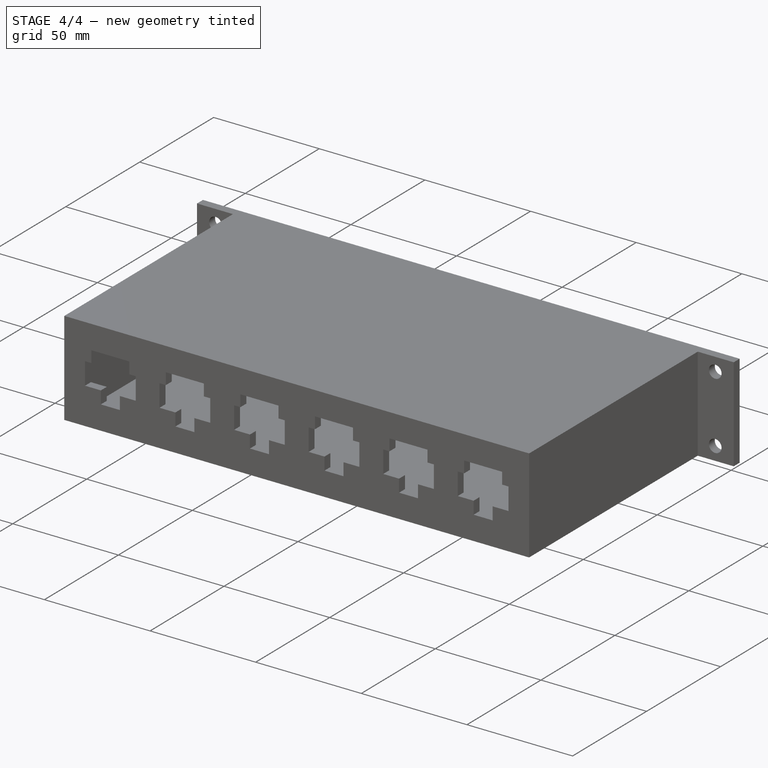
[diagram: stage 4 of 4 — iso view after this stage's code; geometry added in this stage tinted green]
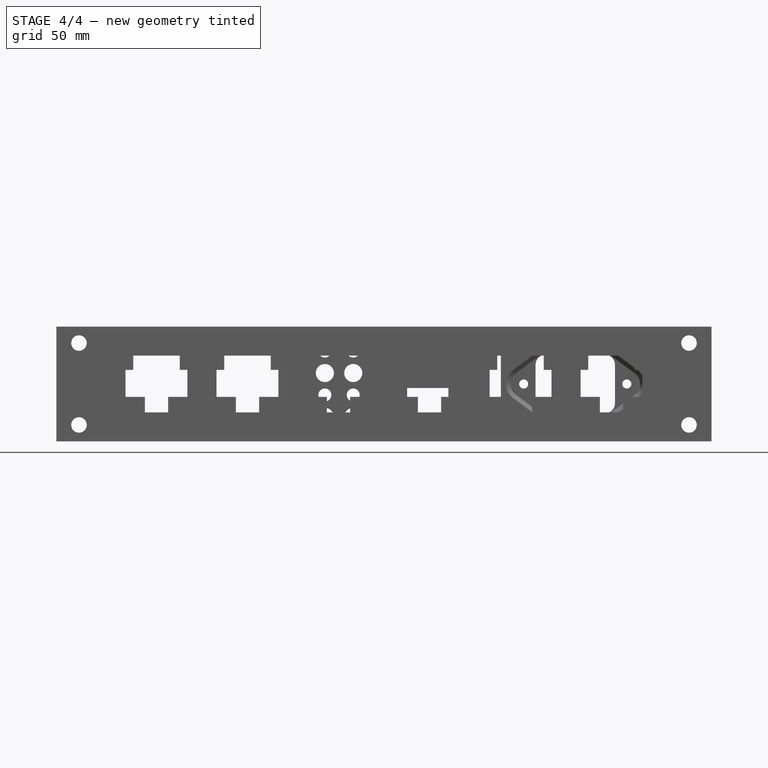
[diagram: stage 4 of 4 — front view after this stage's code; geometry added in this stage tinted green]
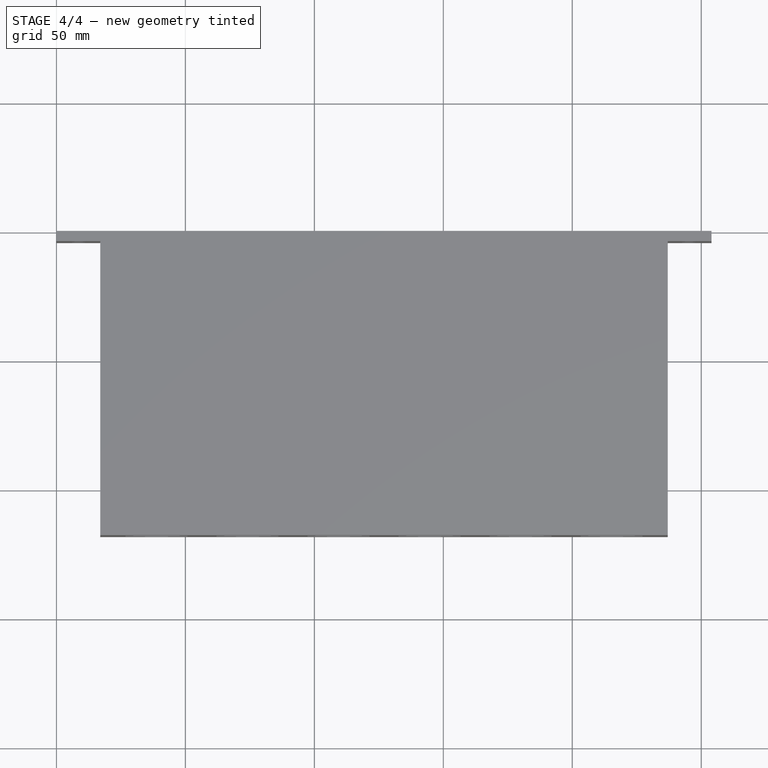
[diagram: stage 4 of 4 — top view after this stage's code; geometry added in this stage tinted green]
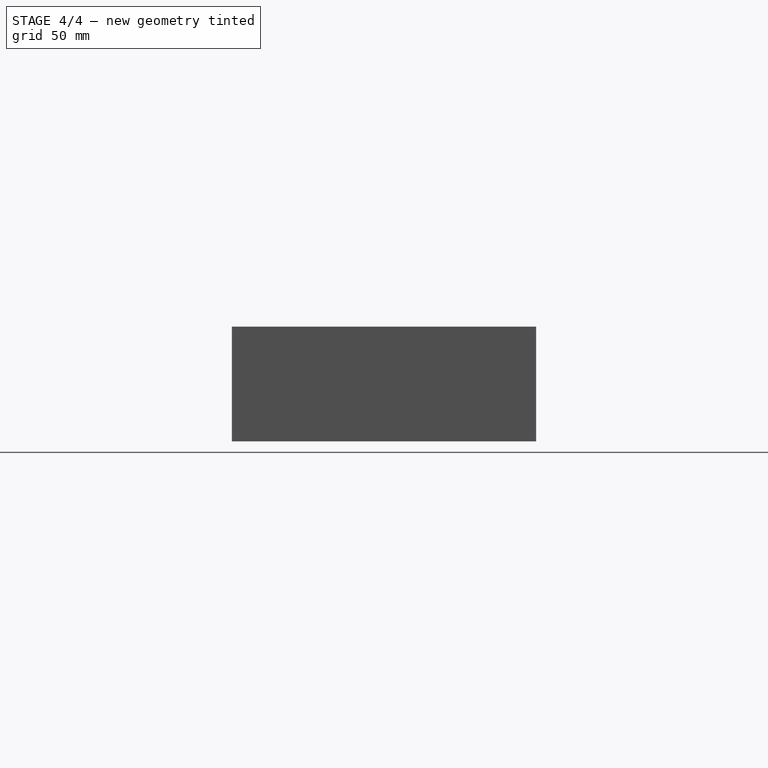
[diagram: stage 4 of 4 — right view after this stage's code; geometry added in this stage tinted green]
FEATURE [Sketcher::SketchObject] Sketch017
  ArcFitTolerance = 1e-06
  AttachmentSupport = -> [XZ_Plane]
  ExternalGeometry = -> [Sketch,Sketch014]
  FullyConstrained = false
  MakeInternals = false
  MapMode = 5
  Placement = pos=(0,0,0) rot=(1,0,0;1.5708rad)
  sketch-geometry (41):
    g0: Circle CenterX=126.071 CenterY=26.5 CenterZ=0 NormalX=0 NormalY=0 NormalZ=1 AngleXU=0 Radius=3.5
    g1: Circle [constr] CenterX=126.071 CenterY=26.5 CenterZ=0 NormalX=0 NormalY=0 NormalZ=1 AngleXU=0 Radius=5
    g2: Circle CenterX=115.071 CenterY=26.5 CenterZ=0 NormalX=0 NormalY=0 NormalZ=1 AngleXU=0 Radius=3.5
    g3: Circle [constr] CenterX=115.071 CenterY=26.5 CenterZ=0 NormalX=0 NormalY=0 NormalZ=1 AngleXU=0 Radius=5
    g4: Circle CenterX=104.071 CenterY=26.5 CenterZ=0 NormalX=0 NormalY=0 NormalZ=1 AngleXU=0 Radius=3.5
    g5: Circle [constr] CenterX=104.071 CenterY=26.5 CenterZ=0 NormalX=0 NormalY=0 NormalZ=1 AngleXU=0 Radius=5
    g6: Circle CenterX=93.0714 CenterY=26.5 CenterZ=0 NormalX=0 NormalY=0 NormalZ=1 AngleXU=0 Radius=3.5
    g7: Circle [constr] CenterX=93.0714 CenterY=26.5 CenterZ=0 NormalX=0 NormalY=0 NormalZ=1 AngleXU=0 Radius=5
    g8: Circle CenterX=126.071 CenterY=9.5 CenterZ=0 NormalX=0 NormalY=0 NormalZ=1 AngleXU=0 Radius=3.5
    g9: Circle [constr] CenterX=126.071 CenterY=9.5 CenterZ=0 NormalX=0 NormalY=0 NormalZ=1 AngleXU=0 Radius=5
    g10: Circle CenterX=115.071 CenterY=9.5 CenterZ=0 NormalX=0 NormalY=0 NormalZ=1 AngleXU=0 Radius=3.5
    g11: Circle [constr] CenterX=115.071 CenterY=9.5 CenterZ=0 NormalX=0 NormalY=0 NormalZ=1 AngleXU=0 Radius=5
    g12: Circle CenterX=104.071 CenterY=9.5 CenterZ=0 NormalX=0 NormalY=0 NormalZ=1 AngleXU=0 Radius=3.5
    g13: Circle [constr] CenterX=104.071 CenterY=9.5 CenterZ=0 NormalX=0 NormalY=0 NormalZ=1 AngleXU=0 Radius=5
    g14: Circle CenterX=93.0714 CenterY=9.5 CenterZ=0 NormalX=0 NormalY=0 NormalZ=1 AngleXU=0 Radius=3.5
    g15: Circle [constr] CenterX=93.0714 CenterY=9.5 CenterZ=0 NormalX=0 NormalY=0 NormalZ=1 AngleXU=0 Radius=5
    g16: LineSegment [constr] StartX=93.0714 StartY=26.5 StartZ=0 EndX=104.071 EndY=26.5 EndZ=0
    g17: LineSegment [constr] StartX=104.071 StartY=26.5 StartZ=0 EndX=115.071 EndY=26.5 EndZ=0
    g18: LineSegment [constr] StartX=115.071 StartY=26.5 StartZ=0 EndX=126.071 EndY=26.5 EndZ=0
    g19: LineSegment [constr] StartX=93.0714 StartY=9.5 StartZ=0 EndX=104.071 EndY=9.5 EndZ=0
    g20: LineSegment [constr] StartX=104.071 StartY=9.5 StartZ=0 EndX=115.071 EndY=9.5 EndZ=0
    g21: LineSegment [constr] StartX=115.071 StartY=9.5 StartZ=0 EndX=126.071 EndY=9.5 EndZ=0
    g22: GeomPoint [constr] X=93.0714 Y=18 Z=0
    g23: GeomPoint [constr] X=91.1916 Y=44.5 Z=0
    g24: GeomPoint [constr] X=94.9513 Y=0 Z=0
    g25: Circle CenterX=93.0714 CenterY=18 CenterZ=0 NormalX=0 NormalY=0 NormalZ=1 AngleXU=0 Radius=2.5
    g26: LineSegment [constr] StartX=93.0714 StartY=9.5 StartZ=0 EndX=93.0714 EndY=35 EndZ=0
    g27: Circle CenterX=104.071 CenterY=18 CenterZ=0 NormalX=0 NormalY=0 NormalZ=1 AngleXU=0 Radius=2.5
    g28: Circle CenterX=115.071 CenterY=18 CenterZ=0 NormalX=0 NormalY=0 NormalZ=1 AngleXU=0 Radius=2.5
    g29: Circle CenterX=126.071 CenterY=18 CenterZ=0 NormalX=0 NormalY=0 NormalZ=1 AngleXU=0 Radius=2.5
    g30: Circle CenterX=126.071 CenterY=35 CenterZ=0 NormalX=0 NormalY=0 NormalZ=1 AngleXU=0 Radius=2.5
    g31: Circle CenterX=115.071 CenterY=35 CenterZ=0 NormalX=0 NormalY=0 NormalZ=1 AngleXU=0 Radius=2.5
    g32: Circle CenterX=104.071 CenterY=35 CenterZ=0 NormalX=0 NormalY=0 NormalZ=1 AngleXU=0 Radius=2.5
    g33: Circle CenterX=93.0714 CenterY=35 CenterZ=0 NormalX=0 NormalY=0 NormalZ=1 AngleXU=0 Radius=2.5
    g34: LineSegment [constr] StartX=93.0714 StartY=35 StartZ=0 EndX=104.071 EndY=35 EndZ=0
    g35: LineSegment [constr] StartX=104.071 StartY=35 StartZ=0 EndX=115.071 EndY=35 EndZ=0
    g36: LineSegment [constr] StartX=115.071 StartY=35 StartZ=0 EndX=126.071 EndY=35 EndZ=0
    g37: LineSegment [constr] StartX=126.071 StartY=18 StartZ=0 EndX=115.071 EndY=18 EndZ=0
    g38: LineSegment [constr] StartX=115.071 StartY=18 StartZ=0 EndX=104.071 EndY=18 EndZ=0
    g39: LineSegment [constr] StartX=104.071 StartY=18 StartZ=0 EndX=93.0714 EndY=18 EndZ=0
    g40: GeomPoint [constr] X=93.0714 Y=22.25 Z=0
  constraints (93):
    c: Diameter(g0) = 7
    c: Coincident(g1,g0)
    c: Diameter(g1) = 10
    c: Diameter(g2) = 7
    c: Coincident(g3,g2)
    c: Diameter(g3) = 10
    c: Diameter(g4) = 7
    c: Coincident(g5,g4)
    c: Diameter(g5) = 10
    c: Diameter(g6) = 7
    c: Coincident(g7,g6)
    c: Diameter(g7) = 10
    c: Diameter(g8) = 7
    c: Coincident(g9,g8)
    c: Diameter(g9) = 10
    c: Diameter(g10) = 7
    c: Coincident(g11,g10)
    c: Diameter(g11) = 10
    c: Diameter(g12) = 7
    c: Coincident(g13,g12)
    c: Diameter(g13) = 10
    c: Diameter(g14) = 7
    c: Coincident(g15,g14)
    c: Diameter(g15) = 10
    c: Coincident(g16,g6)
    c: Coincident(g16,g4)
    c: Coincident(g17,g4)
    c: Coincident(g17,g2)
    c: Horizontal(g17)
    c: Coincident(g18,g2)
    c: Coincident(g18,g0)
    c: Coincident(g19,g14)
    c: Coincident(g19,g12)
    c: Coincident(g20,g12)
    c: Coincident(g20,g10)
    c: Horizontal(g20)
    c: Coincident(g21,g10)
    c: Coincident(g21,g8)
    c: Horizontal(g16)
    c: Horizontal(g19)
    c: Horizontal(g18)
    c: Horizontal(g21)
    c: Equal(g18,g17)
    c: Equal(g17,g16)
    c: Equal(g19,g20)
    c: Equal(g20,g21)
    c: DistanceX(g16,g16) = 11
    c: Symmetric(g14,g6,g22)
    c: PointOnObject(g23,g-3)
    c: PointOnObject(g24,g-4)
    c: Distance(g7,g-5) = 2
    c: Coincident(g25,g22)
    c: Diameter(g25) = 5
    c: Distance(g25,g7) = 1
    c: Equal(g21,g16)
    c: Coincident(g26,g14)
    c: Vertical(g26)
    c: PointOnObject(g6,g26)
    c: Coincident(g33,g26)
    c: Equal(g33,g32)
    c: Equal(g32,g31)
    c: Equal(g31,g30)
    c: Equal(g30,g27)
    c: Equal(g27,g28)
    c: Equal(g28,g29)
    c: Equal(g29,g25)
    c: Coincident(g34,g26)
    c: Coincident(g34,g32)
    c: Horizontal(g34)
    c: Coincident(g35,g32)
    c: Coincident(g35,g31)
    c: Horizontal(g35)
    c: Coincident(g36,g31)
    c: Coincident(g36,g30)
    c: Horizontal(g36)
    c: Coincident(g37,g29)
    c: Coincident(g37,g28)
    c: Horizontal(g37)
    c: Coincident(g38,g28)
    c: Coincident(g38,g27)
    c: Horizontal(g38)
    c: Coincident(g39,g27)
    c: Coincident(g39,g22)
    c: Horizontal(g39)
    c: Equal(g39,g38)
    c: Equal(g38,g37)
    c: Equal(g37,g36)
    c: Equal(g36,g35)
    c: Equal(g35,g34)
    c: Distance(g33,g7) = 1
    c: Equal(g34,g16)
    c: Symmetric(g14,g26,g40)
    c: Symmetric(g24,g23,g40)
FEATURE [PartDesign::Pocket] Pocket004
  BaseFeature = -> Pocket003
  Direction = (0,1,-2e-16)
  Length = 4
  Length2 = 5
  Placement = pos=(0,0,0) rot=(1,0,0;1.5708rad)
  Profile = -> Sketch017
  ReferenceAxis = -> Sketch017 [N_Axis]
  Reversed = true
  Suppressed = false
  Type = 0
FEATURE [Sketcher::SketchObject] Sketch018
  ArcFitTolerance = 1e-06
  AttachmentSupport = -> [XZ_Plane]
  ExternalGeometry = -> [Sketch,Sketch016]
  FullyConstrained = false
  MakeInternals = false
  MapMode = 5
  Placement = pos=(0,0,0) rot=(1,0,0;1.5708rad)
  sketch-geometry (9):
    g0: LineSegment StartX=158.32 StartY=36.5 StartZ=0 EndX=158.32 EndY=8 EndZ=0
    g1: LineSegment StartX=158.32 StartY=8 StartZ=0 EndX=172.32 EndY=8 EndZ=0
    g2: LineSegment StartX=172.32 StartY=8 StartZ=0 EndX=172.32 EndY=36.5 EndZ=0
    g3: LineSegment StartX=172.32 StartY=36.5 StartZ=0 EndX=158.32 EndY=36.5 EndZ=0
    g4: GeomPoint [constr] X=165.32 Y=22.25 Z=0
    g5: LineSegment [constr] StartX=158.32 StartY=36.5 StartZ=0 EndX=172.32 EndY=8 EndZ=0
    g6: LineSegment [constr] StartX=172.32 StartY=36.5 StartZ=0 EndX=158.32 EndY=8 EndZ=0
    g7: GeomPoint [constr] X=165.913 Y=44.5 Z=0
    g8: GeomPoint [constr] X=164.727 Y=0 Z=0
  constraints (20):
    c: Coincident(g0,g1)
    c: Coincident(g1,g2)
    c: Coincident(g2,g3)
    c: Coincident(g3,g0)
    c: Vertical(g0)
    c: Vertical(g2)
    c: Horizontal(g1)
    c: Horizontal(g3)
    c: DistanceY(g2,g2) = 28.5
    c: DistanceX(g3,g3) = 14
    c: Coincident(g5,g0)
    c: Coincident(g5,g1)
    c: Coincident(g6,g2)
    c: Coincident(g6,g0)
    c: PointOnObject(g4,g5)
    c: PointOnObject(g4,g6)
    c: PointOnObject(g7,g-3)
    c: PointOnObject(g8,g-4)
    c: Symmetric(g8,g7,g4)
    c: Distance(g-5,g2) = 2
FEATURE [PartDesign::Pocket] Pocket005
  BaseFeature = -> Pocket004
  Direction = (0,1,-2e-16)
  Length = 4
  Length2 = 5
  Placement = pos=(0,0,0) rot=(1,0,0;1.5708rad)
  Profile = -> Sketch018
  ReferenceAxis = -> Sketch018 [N_Axis]
  Reversed = true
  Suppressed = false
  Type = 0
FEATURE [Sketcher::SketchObject] Sketch019
  ArcFitTolerance = 1e-06
  AttachmentSupport = -> [XZ_Plane]
  ExternalGeometry = -> [Sketch018,Sketch017,Sketch009]
  FullyConstrained = false
  MakeInternals = false
  MapMode = 5
  Placement = pos=(0,0,0) rot=(1,0,0;1.5708rad)
  sketch-geometry (6):
    g0: LineSegment StartX=135.946 StartY=20.7 StartZ=0 EndX=135.946 EndY=7 EndZ=0
    g1: LineSegment StartX=135.946 StartY=7 StartZ=0 EndX=151.946 EndY=7 EndZ=0
    g2: LineSegment StartX=151.946 StartY=7 StartZ=0 EndX=151.946 EndY=20.7 EndZ=0
    g3: LineSegment StartX=151.946 StartY=20.7 StartZ=0 EndX=135.946 EndY=20.7 EndZ=0
    g4: LineSegment [constr] StartX=129.571 StartY=9.5 StartZ=0 EndX=135.946 EndY=9.5 EndZ=0
    g5: LineSegment [constr] StartX=151.946 StartY=9.98433 StartZ=0 EndX=158.32 EndY=9.98433 EndZ=0
  constraints (19):
    c: Coincident(g0,g1)
    c: Coincident(g1,g2)
    c: Coincident(g2,g3)
    c: Coincident(g3,g0)
    c: Vertical(g0)
    c: Vertical(g2)
    c: Horizontal(g1)
    c: Horizontal(g3)
    c: DistanceY(g2,g2) = 13.7
    c: DistanceX(g3,g3) = 16
    c: PointOnObject(g4,g-4)
    c: PointOnObject(g4,g0)
    c: Horizontal(g4)
    c: PointOnObject(g5,g2)
    c: PointOnObject(g5,g-3)
    c: Horizontal(g5)
    c: Equal(g5,g4)
    c: Perpendicular(g-4,g4)
    c: Distance(g1,g-5) = 3
FEATURE [PartDesign::Pocket] Pocket006
  BaseFeature = -> Pocket005
  Direction = (0,1,-2e-16)
  Length = 4
  Length2 = 5
  Placement = pos=(0,0,0) rot=(1,0,0;1.5708rad)
  Profile = -> Sketch019
  ReferenceAxis = -> Sketch019 [N_Axis]
  Reversed = true
  Suppressed = false
  Type = 0
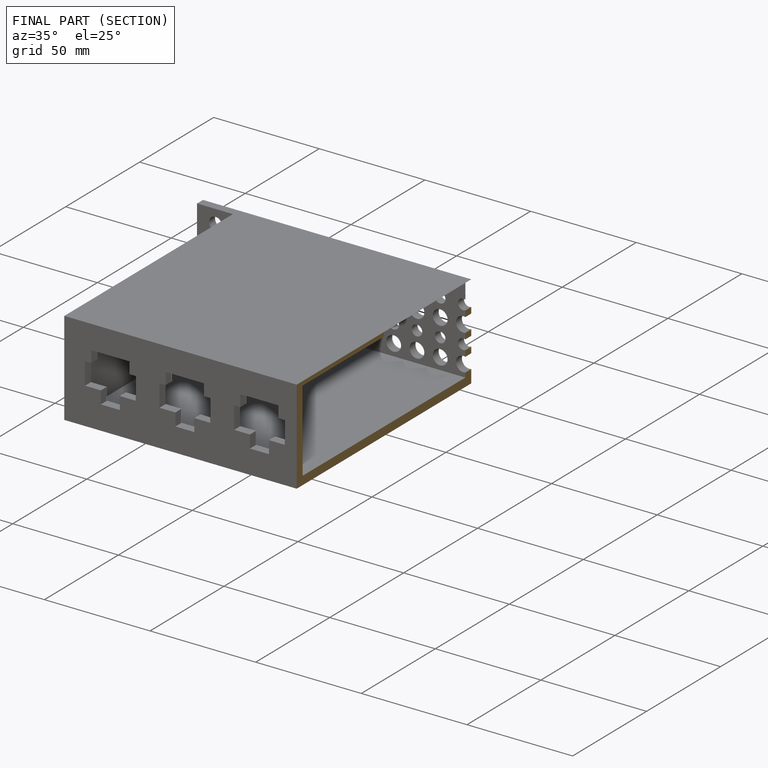
[diagram: finished part — half-section view (interior)]
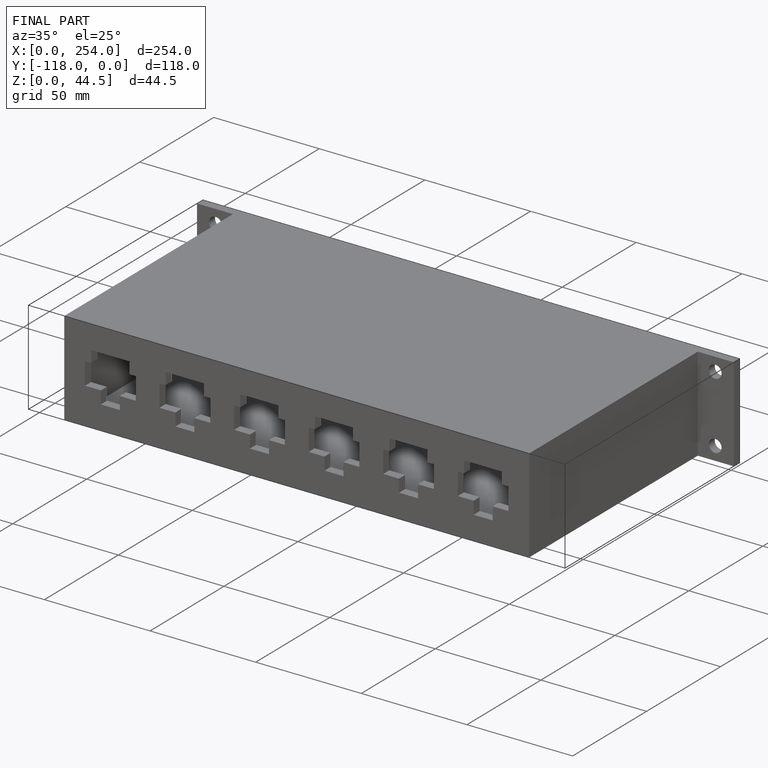
[diagram: finished part — iso view with bounding-box wireframe]
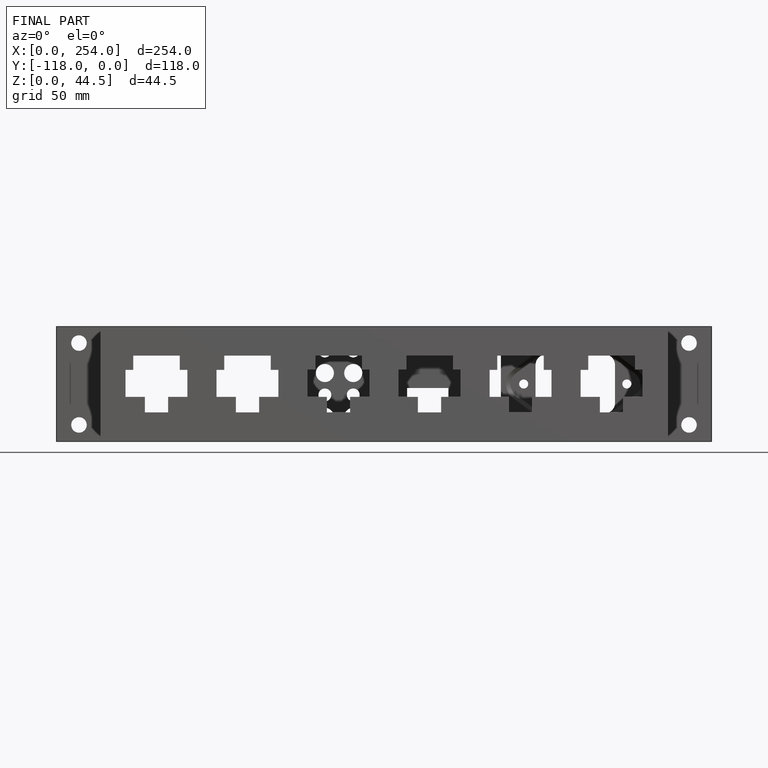
[diagram: finished part — front view with bounding-box wireframe]
